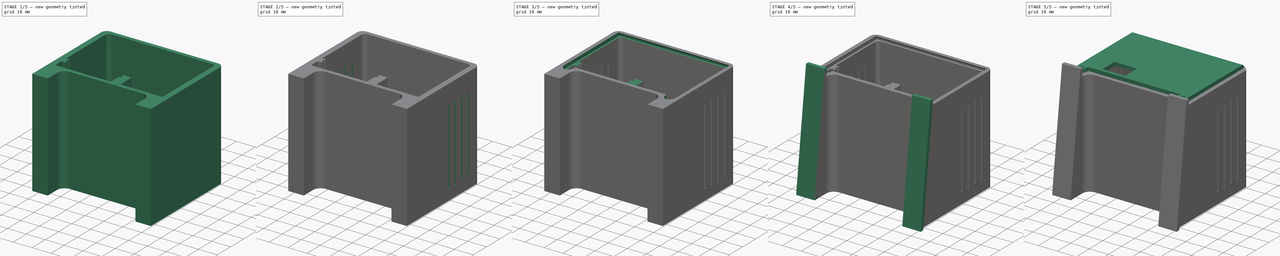
[diagram: build sequence overview — one tinted view per stage of 5, left to right]
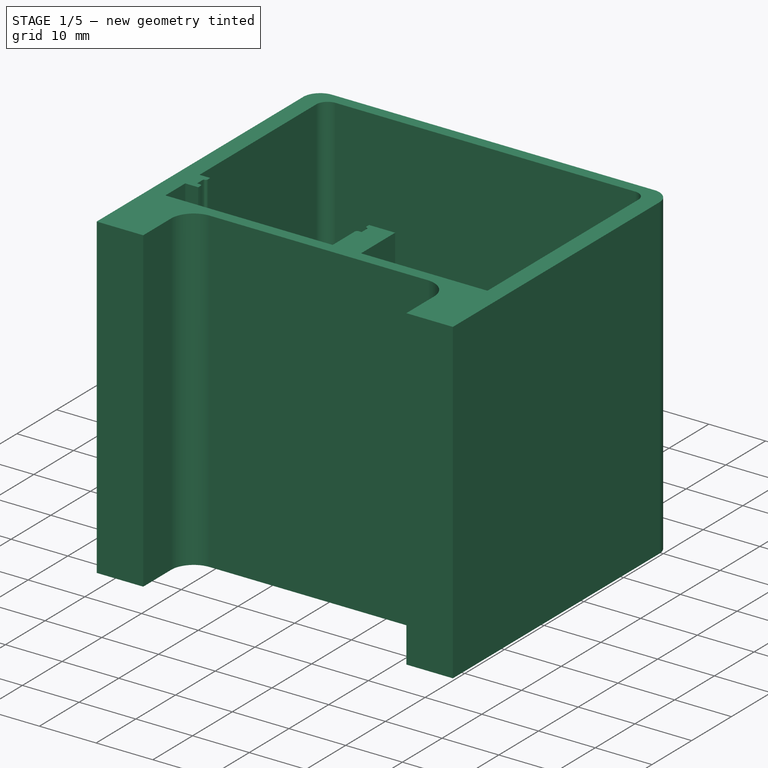
[diagram: stage 1 of 5 — iso view after this stage's code; geometry added in this stage tinted green]
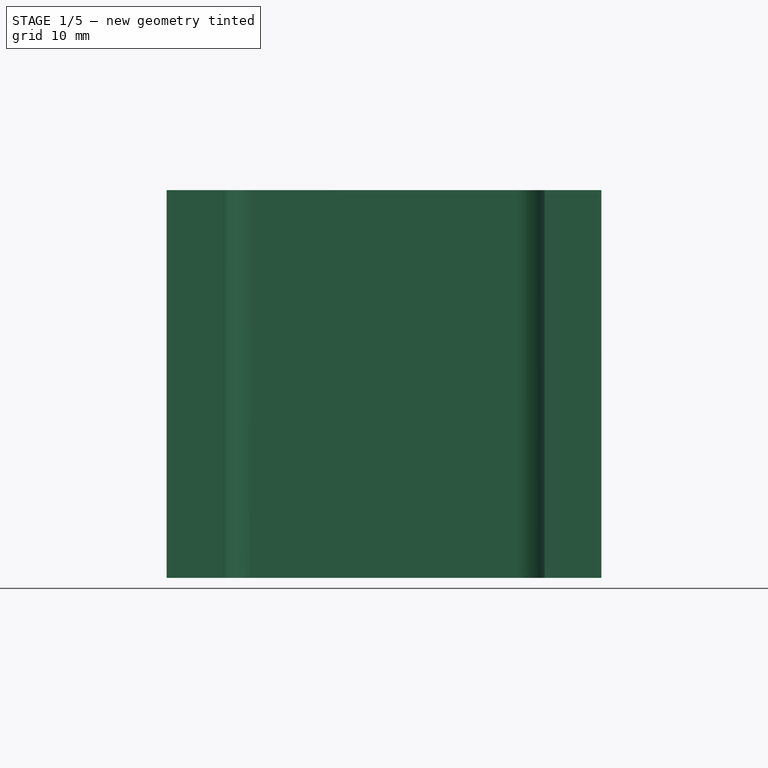
[diagram: stage 1 of 5 — front view after this stage's code; geometry added in this stage tinted green]
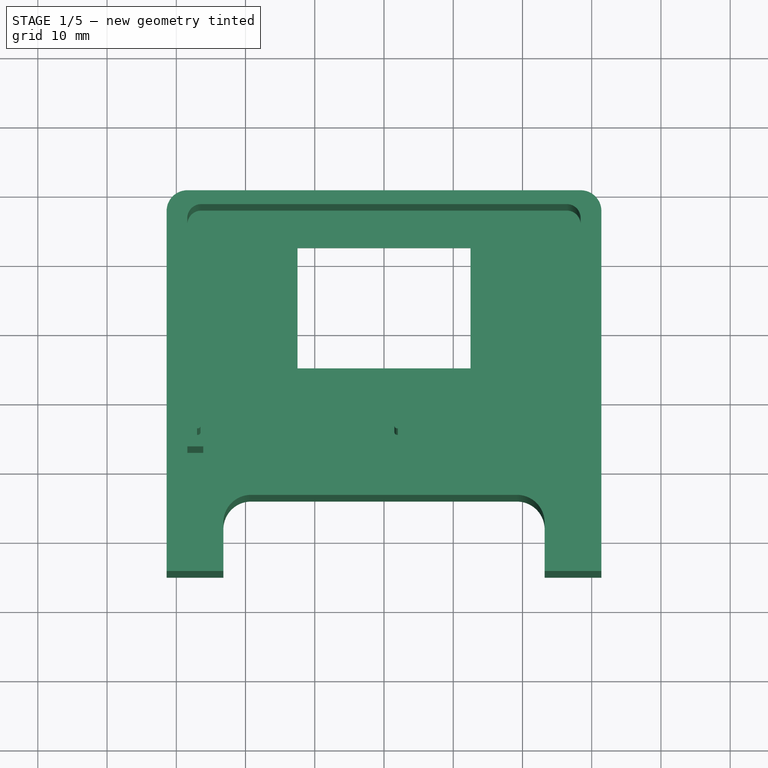
[diagram: stage 1 of 5 — top view after this stage's code; geometry added in this stage tinted green]
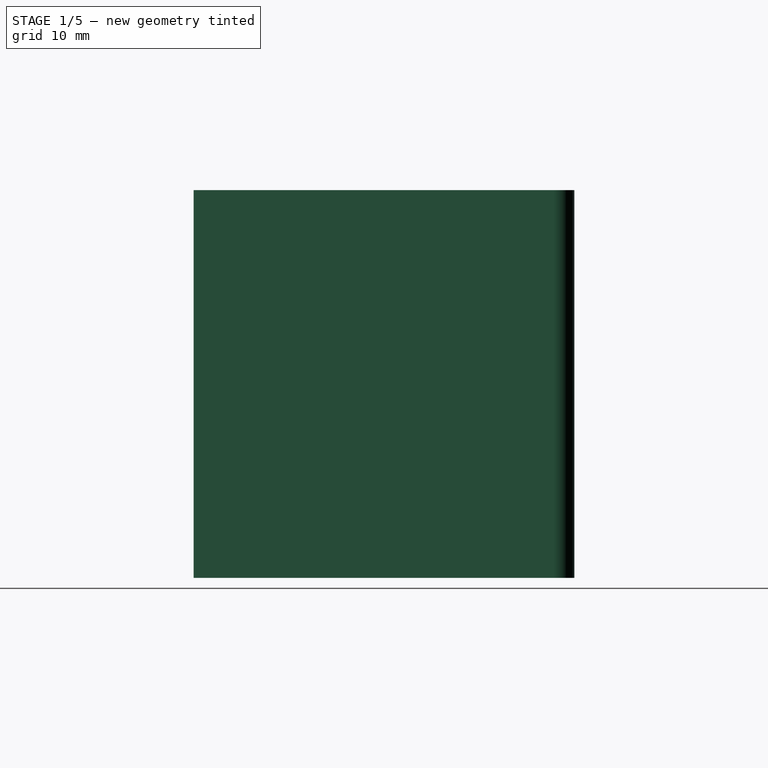
[diagram: stage 1 of 5 — right view after this stage's code; geometry added in this stage tinted green]
FCSTD DOCUMENT  (FreeCAD 0.19R24291 (Git))
Label: esp32-station-v0.26-wide
License: All rights reserved
LicenseURL: http://en.wikipedia.org/wiki/All_rights_reserved
objects: Sketcher::SketchObject×17, PartDesign::Pocket×9, PartDesign::Pad×8, PartDesign::Body×4, PartDesign::Chamfer×3, PartDesign::Plane×3, PartDesign::Mirrored×2, Spreadsheet::Sheet×1, PartDesign::Boolean×1, PartDesign::LinearPattern×1, App::Part×1
note: 68 computed .brp shape members not serialized (recipe doc carries the construction recipe); baked Part::Feature solids carry a one-line shape summary decoded from their .brp

FEATURE [PartDesign::Body] Body002  label="lid-cut"
  Group = -> [Sketch007,Pad003,Chamfer001]
  Origin = -> Origin003
  Tip = -> Chamfer001
FEATURE [Sketcher::SketchObject] Sketch008  label="sketch_screw_holes"
  AttachmentOffset = pos=(0,0,54.2) rot=(0,0,1;0rad)
  FullyConstrained = true
  MapMode = 5
  Placement = pos=(0,0,54.2) rot=(0,0,1;0rad)
  Support = -> [XY_Plane001]
  expr: .AttachmentOffset.Base.z = Spreadsheet.main_depth - Spreadsheet.lid_thickness
  expr: Constraints[2] = Spreadsheet.inner_width / 2 - Spreadsheet.lid_notch_diameter / 2 + Spreadsheet.lid_overhang
  expr: Constraints[1] = Spreadsheet.inner_height + Spreadsheet.lid_notch_length
  expr: Constraints[0] = Spreadsheet.screw_diameter
  sketch-geometry (2):
    g0: Circle CenterX=-26.9 CenterY=-43.8 CenterZ=0 NormalX=0 NormalY=0 NormalZ=1 AngleXU=0 Radius=1.1
    g1: Circle CenterX=26.9 CenterY=-43.8 CenterZ=0 NormalX=0 NormalY=0 NormalZ=1 AngleXU=0 Radius=1.1
  constraints (5):
    c: Diameter(g0) = 2.2
    c: DistanceY(g0,g-1) = 43.8
    c: DistanceX(g0,g-1) = 26.9
    c: Equal(g0,g1)
    c: Symmetric(g0,g1,g-2)
FEATURE [Sketcher::SketchObject] Sketch010  label="sketch_feet"
  FullyConstrained = true
  MapMode = 5
  Support = -> [XY_Plane001]
  expr: Constraints[11] = Spreadsheet.main_width / 2 - Spreadsheet.main_leg_width
  expr: Constraints[10] = Spreadsheet.main_height
  expr: Constraints[9] = Spreadsheet.leg_foot_height
  expr: Constraints[8] = Spreadsheet.leg_foot_width
  sketch-geometry (4):
    g0: LineSegment StartX=23.2 StartY=-55 StartZ=0 EndX=33 EndY=-55 EndZ=0
    g1: LineSegment StartX=33 StartY=-55 StartZ=0 EndX=33 EndY=-56.8 EndZ=0
    g2: LineSegment StartX=33 StartY=-56.8 StartZ=0 EndX=23.2 EndY=-56.8 EndZ=0
    g3: LineSegment StartX=23.2 StartY=-56.8 StartZ=0 EndX=23.2 EndY=-55 EndZ=0
  constraints (12):
    c: Coincident(g0,g1)
    c: Coincident(g1,g2)
    c: Coincident(g2,g3)
    c: Coincident(g3,g0)
    c: Horizontal(g0)
    c: Horizontal(g2)
    c: Vertical(g1)
    c: Vertical(g3)
    c: DistanceX(g2,g2) = 9.8
    c: DistanceY(g3,g3) = 1.8
    c: DistanceY(g0,g-1) = 55
    c: DistanceX(g-1,g0) = 23.2
FEATURE [Sketcher::SketchObject] Sketch011  label="sketch_front"
  FullyConstrained = true
  MapMode = 5
  Support = -> [XY_Plane001]
  expr: Constraints[13] = Spreadsheet.main_leg_radius
  expr: Constraints[24] = Spreadsheet.main_top_radius
  expr: Constraints[16] = Spreadsheet.main_height
  expr: Constraints[14] = Spreadsheet.main_leg_height
  expr: Constraints[9] = Spreadsheet.main_leg_width
  expr: Constraints[30] = Spreadsheet.main_leg_radius
  expr: Constraints[29] = Spreadsheet.main_top_radius
  expr: Constraints[32] = Spreadsheet.main_width
  sketch-geometry (13):
    g0: LineSegment StartX=-31.4 StartY=-55 StartZ=0 EndX=-31.4 EndY=-3 EndZ=0
    g1: LineSegment StartX=31.4 StartY=-55 StartZ=0 EndX=23.2 EndY=-55 EndZ=0
    g2: LineSegment StartX=23.2 StartY=-55 StartZ=0 EndX=23.2 EndY=-48 EndZ=0
    g3: LineSegment StartX=19.2 StartY=-44 StartZ=0 EndX=-19.2 EndY=-44 EndZ=0
    g4: LineSegment StartX=-23.2 StartY=-48 StartZ=0 EndX=-23.2 EndY=-55 EndZ=0
    g5: LineSegment StartX=-23.2 StartY=-55 StartZ=0 EndX=-31.4 EndY=-55 EndZ=0
    g6: ArcOfCircle CenterX=-19.2 CenterY=-48 CenterZ=0 NormalX=0 NormalY=0 NormalZ=1 AngleXU=0 Radius=4 StartAngle=1.5708 EndAngle=3.14159
    g7: ArcOfCircle CenterX=19.2 CenterY=-48 CenterZ=0 NormalX=0 NormalY=0 NormalZ=1 AngleXU=0 Radius=4 StartAngle=0 EndAngle=1.5708
    g8: LineSegment StartX=-28.4 StartY=-3.33e-14 StartZ=0 EndX=28.4 EndY=-5.46e-14 EndZ=0
    g9: LineSegment StartX=-23.2 StartY=-55 StartZ=0 EndX=23.2 EndY=-55 EndZ=0
    g10: ArcOfCircle CenterX=-28.4 CenterY=-3 CenterZ=0 NormalX=0 NormalY=0 NormalZ=1 AngleXU=0 Radius=3 StartAngle=1.5708 EndAngle=3.14159
    g11: LineSegment StartX=31.4 StartY=-55 StartZ=0 EndX=31.4 EndY=-3 EndZ=0
    g12: ArcOfCircle CenterX=28.4 CenterY=-3 CenterZ=0 NormalX=0 NormalY=0 NormalZ=1 AngleXU=0 Radius=3 StartAngle=-4.4e-15 EndAngle=1.5708
  constraints (33):
    c: Horizontal(g1)
    c: Coincident(g1,g2)
    c: Vertical(g2)
    c: Horizontal(g3)
    c: Vertical(g4)
    c: Coincident(g4,g5)
    c: Coincident(g5,g0)
    c: Horizontal(g5)
    c: Equal(g5,g1)
    c: DistanceX(g5,g5) = 8.2
    c: Tangent(g3,g6) = -1.5708
    c: Tangent(g4,g6) = -1.5708
    c: Vertical(g0)
    c: Radius(g6) = 4
    c: DistanceY(g4,g3) = 11
    c: Symmetric(g8,g8,g-2)
    c: DistanceY(g0,g8) = 55
    c: Tangent(g7,g3) = -1.5708
    c: Tangent(g7,g2) = -1.5708
    c: Coincident(g9,g4)
    c: Coincident(g9,g1)
    c: Horizontal(g9)
    c: Tangent(g10,g0) = 1.5708
    c: Tangent(g8,g10) = 1.5708
    c: Radius(g10) = 3
    c: Coincident(g11,g1)
    c: Vertical(g11)
    c: Tangent(g12,g8) = 1.5708
    c: Tangent(g12,g11) = -1.5708
    c: Radius(g12) = 3
    c: Radius(g7) = 4
    c: PointOnObject(g-1,g8)
    c: DistanceX(g0,g11) = 62.8
FEATURE [PartDesign::Pad] Pad005  label="pad_front"
  Direction = (1,1,1)
  Length = 2.2
  Length2 = 100
  Profile = -> Sketch011
  Type = 0
  expr: Length = Spreadsheet.front_thickness
FEATURE [PartDesign::Pad] Pad  label="pad_main"
  BaseFeature = -> Pad005
  Direction = (1,1,1)
  Length = 53.8
  Length2 = 100
  Profile = -> Sketch
  Type = 0
  expr: Length = Spreadsheet.main_depth - Spreadsheet.front_thickness
FEATURE [PartDesign::Pocket] Pocket001  label="pocket_screen"
  BaseFeature = -> Pad
  Length = 2.2
  Length2 = 100
  Profile = -> Sketch003
  Reversed = true
  Type = 0
  expr: Length = Spreadsheet.front_thickness
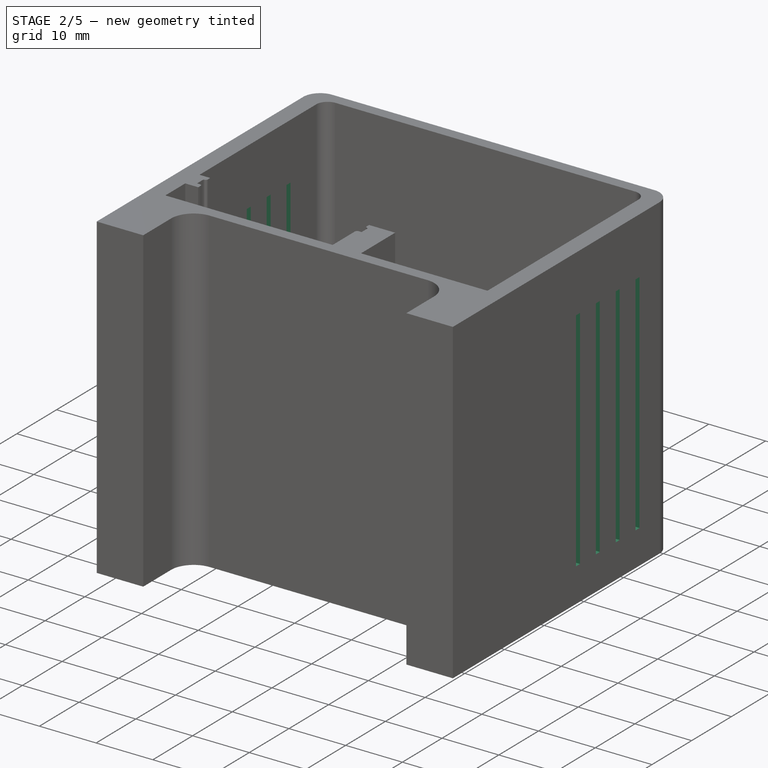
[diagram: stage 2 of 5 — iso view after this stage's code; geometry added in this stage tinted green]
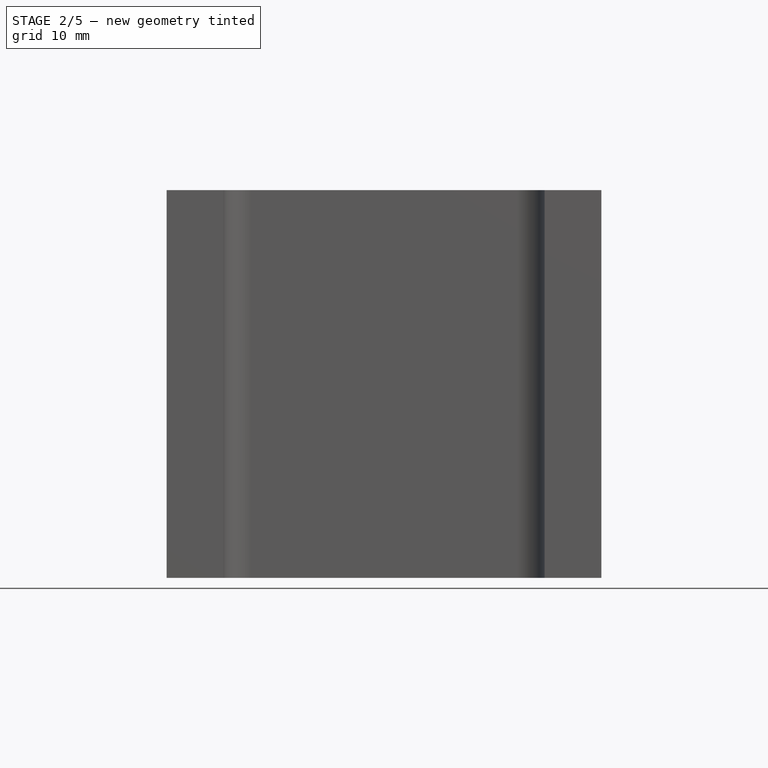
[diagram: stage 2 of 5 — front view after this stage's code; geometry added in this stage tinted green]
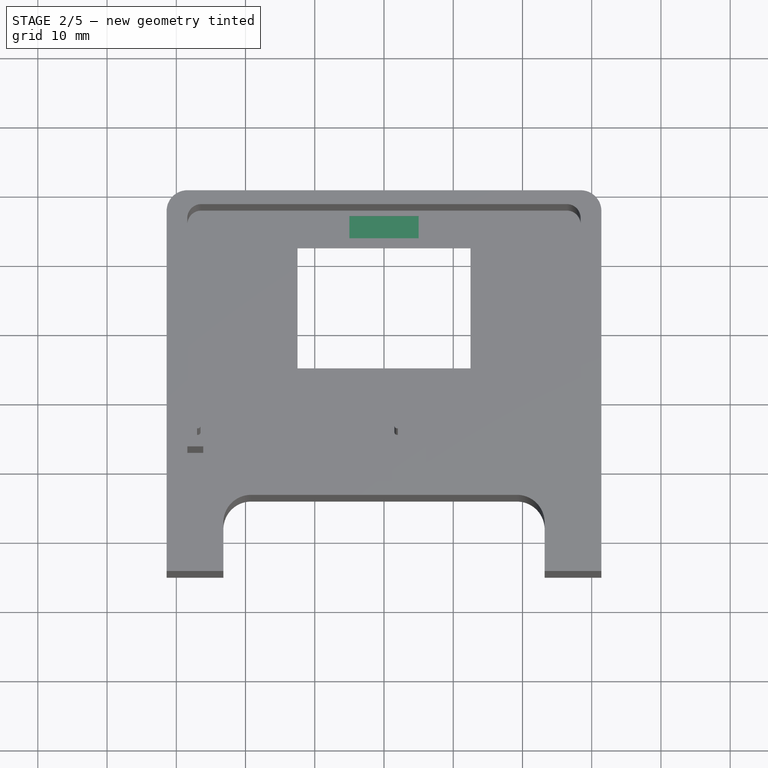
[diagram: stage 2 of 5 — top view after this stage's code; geometry added in this stage tinted green]
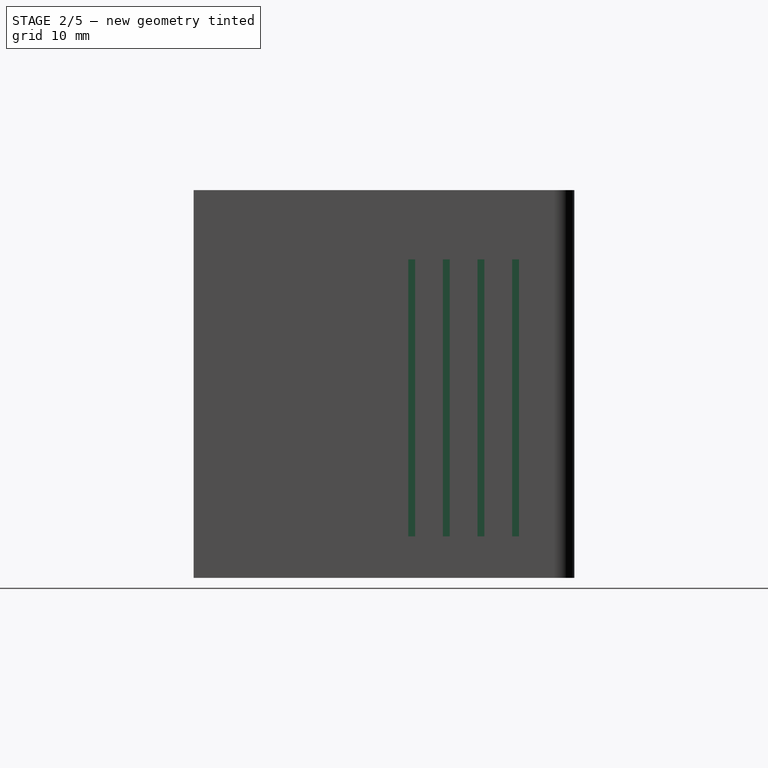
[diagram: stage 2 of 5 — right view after this stage's code; geometry added in this stage tinted green]
FEATURE [PartDesign::Pocket] Pocket003  label="pocket_solder_indent"
  BaseFeature = -> Pocket001
  Length = 0.8
  Length2 = 100
  Profile = -> Sketch005
  Type = 0
  expr: Length = Spreadsheet.screen_solder_depth
FEATURE [PartDesign::Pocket] Pocket002  label="pocket_loovers"
  BaseFeature = -> Pocket003
  Length = 40
  Length2 = 100
  Profile = -> Sketch004
  Reversed = true
  Type = 0
  expr: Length = Spreadsheet.loover_length
FEATURE [PartDesign::Mirrored] Mirrored  label="mirror_loovers"
  BaseFeature = -> Pocket002
  MirrorPlane = -> YZ_Plane001
  Originals = -> [Pocket002]
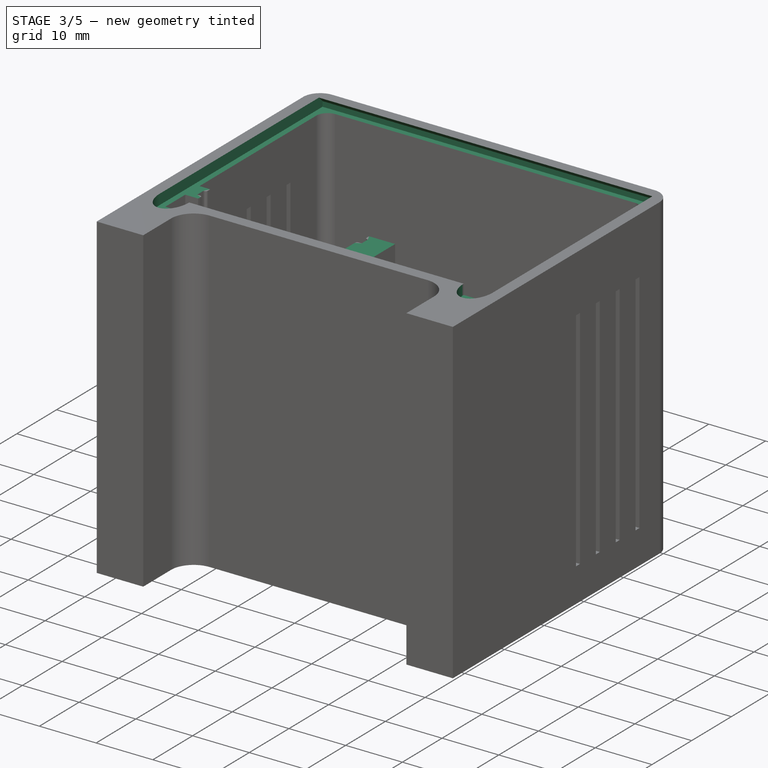
[diagram: stage 3 of 5 — iso view after this stage's code; geometry added in this stage tinted green]
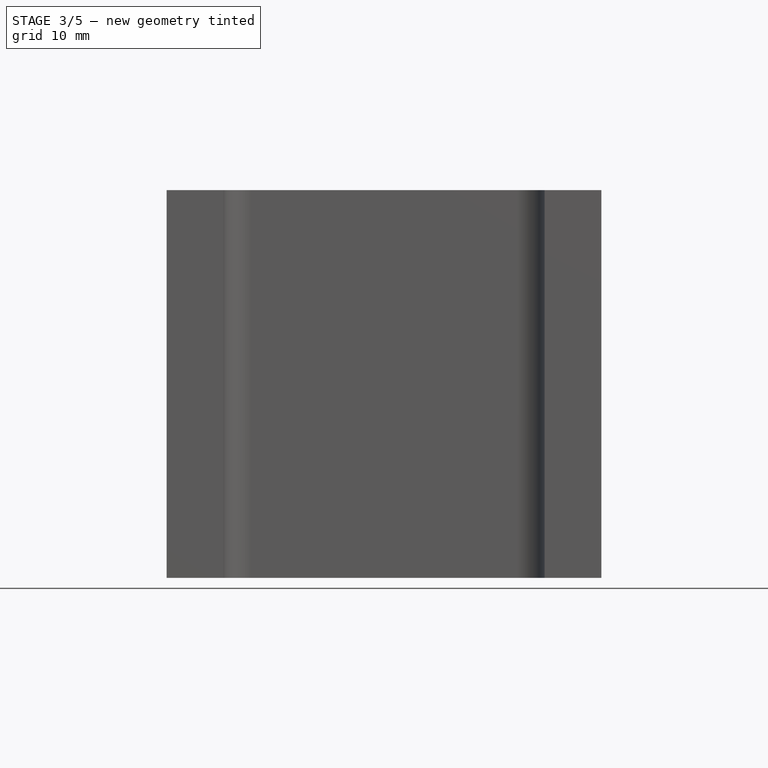
[diagram: stage 3 of 5 — front view after this stage's code; geometry added in this stage tinted green]
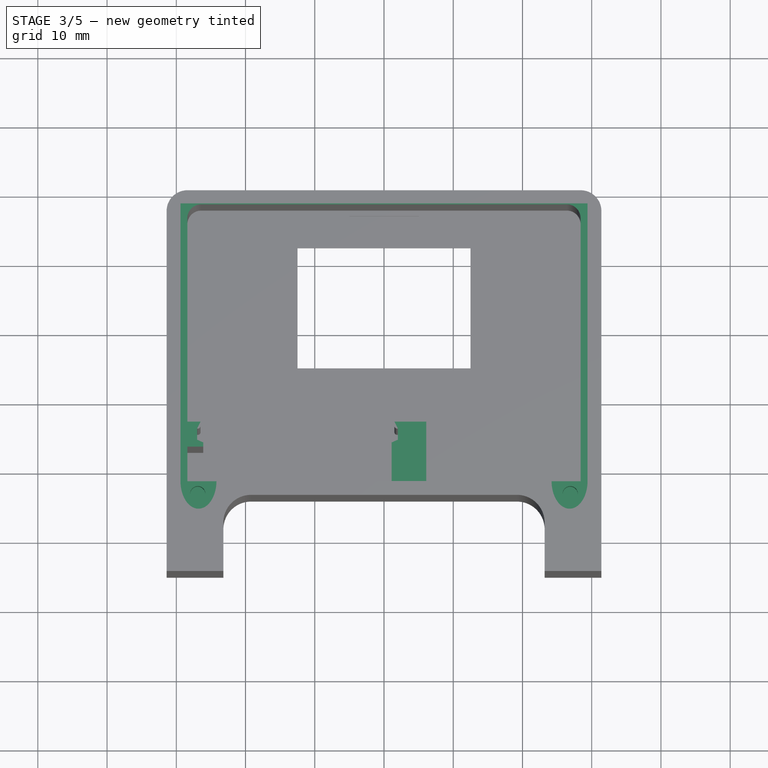
[diagram: stage 3 of 5 — top view after this stage's code; geometry added in this stage tinted green]
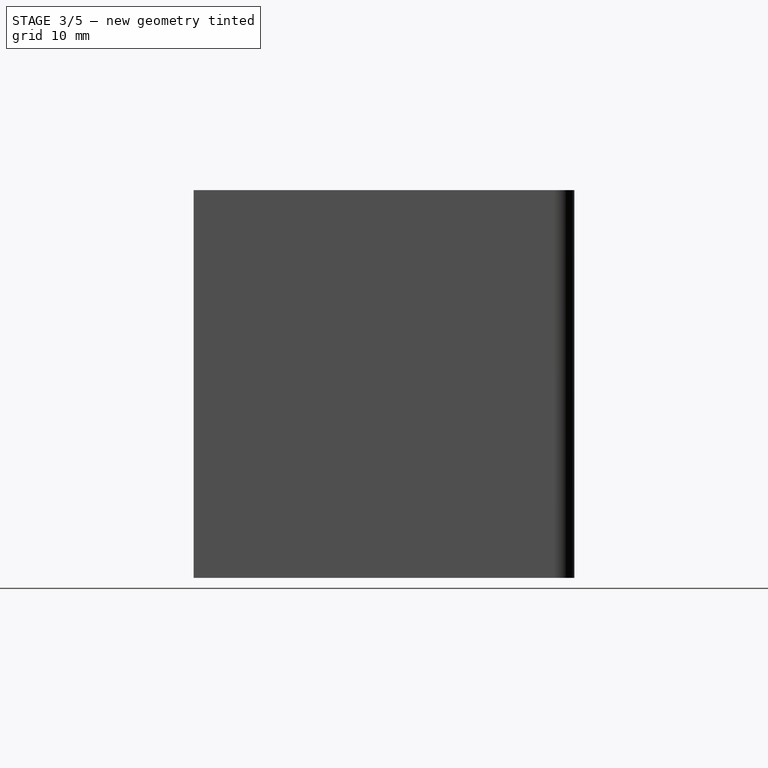
[diagram: stage 3 of 5 — right view after this stage's code; geometry added in this stage tinted green]
FEATURE [PartDesign::Body] Body001  label="body-lid-std"
  Group = -> [Sketch006,Pad002,Chamfer]
  Origin = -> Origin002
  Tip = -> Chamfer
FEATURE [Sketcher::SketchObject] Sketch007  label="sketch_lid_cut"
  AttachmentOffset = pos=(0,0,54.2) rot=(0,0,1;0rad)
  FullyConstrained = true
  MapMode = 5
  Placement = pos=(0,0,54.2) rot=(0,0,1;0rad)
  Support = -> [XY_Plane003]
  expr: Constraints[29] = Spreadsheet.lid_notch_diameter + Spreadsheet.lid_side_clearance
  expr: Constraints[2] = Spreadsheet.inner_width + Spreadsheet.lid_overhang * 2
  expr: Constraints[10] = Spreadsheet.lid_notch_diameter + Spreadsheet.lid_side_clearance
  expr: .AttachmentOffset.Base.z = Spreadsheet.main_depth - Spreadsheet.lid_thickness
  expr: Constraints[12] = Spreadsheet.inner_height + Spreadsheet.lid_overhang * 2 - Spreadsheet.inner_top_thickness / 2
  expr: Constraints[11] = Spreadsheet.lid_notch_length + Spreadsheet.lid_side_clearance
  expr: Constraints[22] = Spreadsheet.lid_notch_length + Spreadsheet.lid_side_clearance
  expr: Constraints[31] = Spreadsheet.inner_top_thickness / 2
  sketch-geometry (14):
    g0: LineSegment StartX=-29.4 StartY=-1 StartZ=0 EndX=29.4 EndY=-1 EndZ=0
    g1: LineSegment StartX=-29.4 StartY=-42 StartZ=0 EndX=-29.4 EndY=-1 EndZ=0
    g2: ArcOfEllipse CenterX=-26.8 CenterY=-42 CenterZ=0 NormalX=0 NormalY=0 NormalZ=1 MajorRadius=4 MinorRadius=2.6 AngleXU=-1.5708 StartAngle=4.71239 EndAngle=7.85398
    g3: LineSegment StartX=-26.8 StartY=-46 StartZ=0 EndX=-26.8 EndY=-38 EndZ=0
    g4: LineSegment StartX=-24.2 StartY=-42 StartZ=0 EndX=-29.4 EndY=-42 EndZ=0
    g5: GeomPoint X=-26.8 Y=-45.0397 Z=0
    g6: GeomPoint X=-26.8 Y=-38.9603 Z=0
    g7: LineSegment StartX=-24.2 StartY=-42 StartZ=0 EndX=24.2 EndY=-42 EndZ=0
    g8: ArcOfEllipse CenterX=26.8 CenterY=-42 CenterZ=0 NormalX=0 NormalY=0 NormalZ=1 MajorRadius=4 MinorRadius=2.6 AngleXU=-1.5708 StartAngle=4.71239 EndAngle=7.85398
    g9: LineSegment StartX=26.8 StartY=-46 StartZ=0 EndX=26.8 EndY=-38 EndZ=0
    g10: LineSegment StartX=29.4 StartY=-42 StartZ=0 EndX=24.2 EndY=-42 EndZ=0
    g11: GeomPoint X=26.8 Y=-38.9603 Z=0
    g12: GeomPoint X=26.8 Y=-45.0397 Z=0
    g13: LineSegment StartX=29.4 StartY=-1 StartZ=0 EndX=29.4 EndY=-42 EndZ=0
  constraints (29):
    c: Coincident(g1,g0)
    c: Vertical(g1)
    c: DistanceX(g0,g0) = 58.8
    c: Symmetric(g0,g0,g-2)
    c: InternalAlignment(g3-g6 -> g2) x4
    c: Vertical(g3)
    c: Coincident(g2,g4)
    c: DistanceX(g1,g2) = 5.2
    c: DistanceY(g3,g2) = 4
    c: DistanceY(g2,g0) = 41
    c: Coincident(g7,g2)
    c: Horizontal(g7)
    c: InternalAlignment(g9,g8)
    c: InternalAlignment(g10,g8)
    c: InternalAlignment(g12,g8)
    c: InternalAlignment(g11,g8)
    c: Vertical(g9)
    c: Coincident(g8,g10)
    c: PointOnObject(g8,g10)
    c: DistanceY(g9,g8) = 4
    c: Coincident(g8,g7)
    c: Coincident(g2,g1)
    c: Coincident(g13,g0)
    c: Coincident(g13,g8)
    c: Vertical(g13)
    c: Equal(g1,g13)
    c: DistanceX(g7,g8) = 5.2
    c: DistanceY(g1,g2) = 0
    c: DistanceY(g0,g-1) = 1
FEATURE [PartDesign::Pad] Pad003  label="pad_lid_cut"
  Direction = (1,1,1)
  Length = 1.8
  Length2 = 100
  Profile = -> Sketch007
  Type = 0
  expr: Length = Spreadsheet.lid_thickness
FEATURE [PartDesign::Chamfer] Chamfer001
  Angle = 45
  Base = -> Pad003 [Edge4]
  BaseFeature = -> Pad003
  ChamferType = 2
  FlipDirection = false
  Size = 0.9
  Size2 = 1
  SupportTransform = false
  expr: Size = Spreadsheet.lid_thickness / 2
FEATURE [PartDesign::Boolean] Boolean  label="boolean_lid-cut"
  BaseFeature = -> Mirrored
  Group = -> [Body002]
  Type = 1
FEATURE [PartDesign::Pocket] Pocket004  label="pocket_screw_holes"
  BaseFeature = -> Boolean
  Length = 6
  Length2 = 100
  Profile = -> Sketch008
  Type = 0
  expr: Length = Spreadsheet.screw_depth
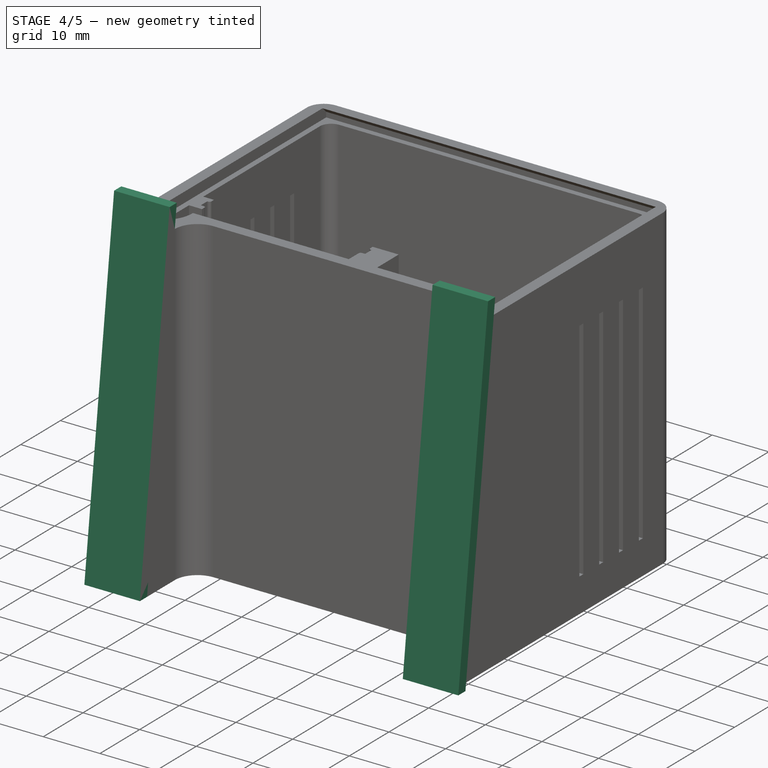
[diagram: stage 4 of 5 — iso view after this stage's code; geometry added in this stage tinted green]
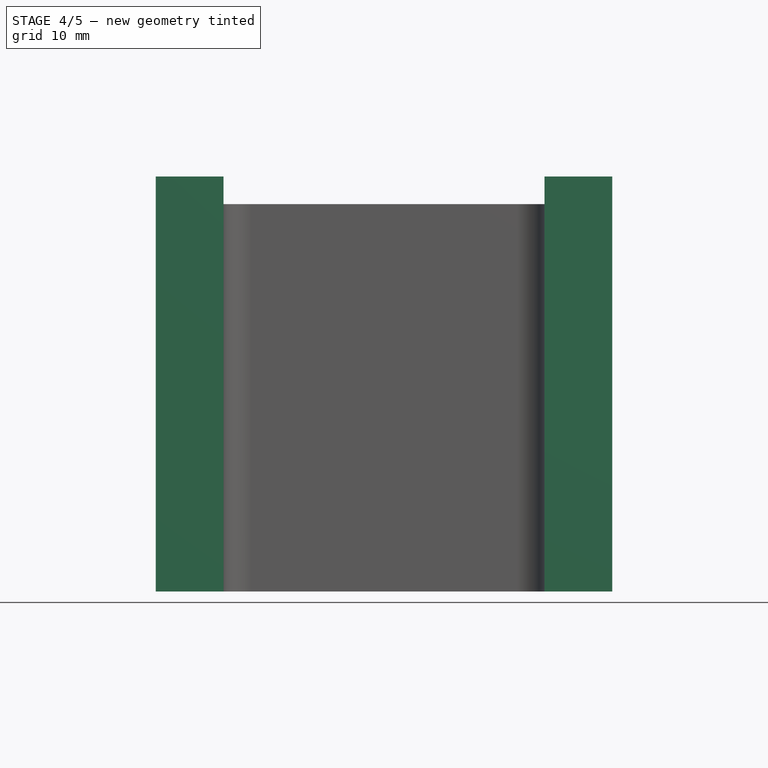
[diagram: stage 4 of 5 — front view after this stage's code; geometry added in this stage tinted green]
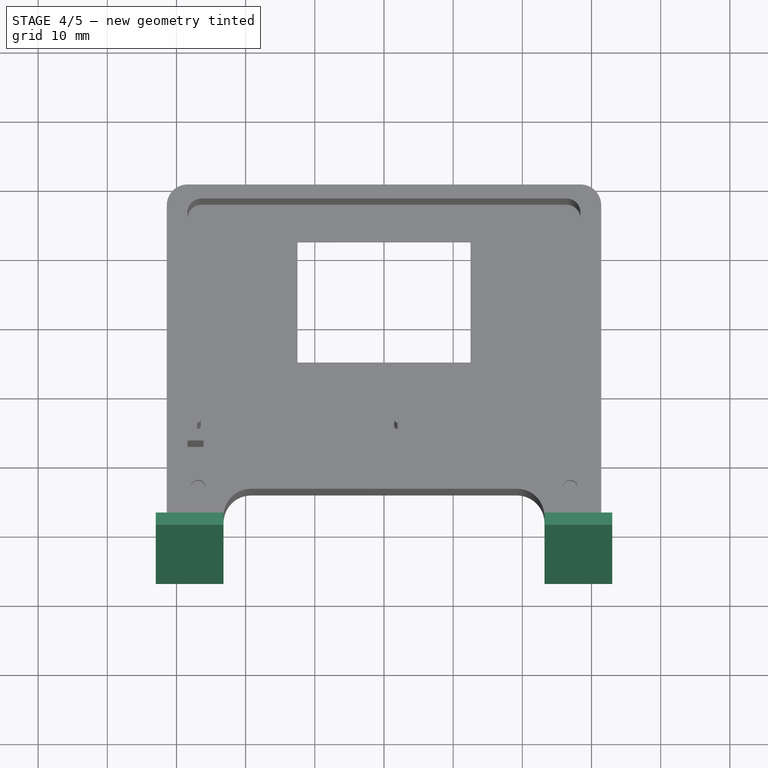
[diagram: stage 4 of 5 — top view after this stage's code; geometry added in this stage tinted green]
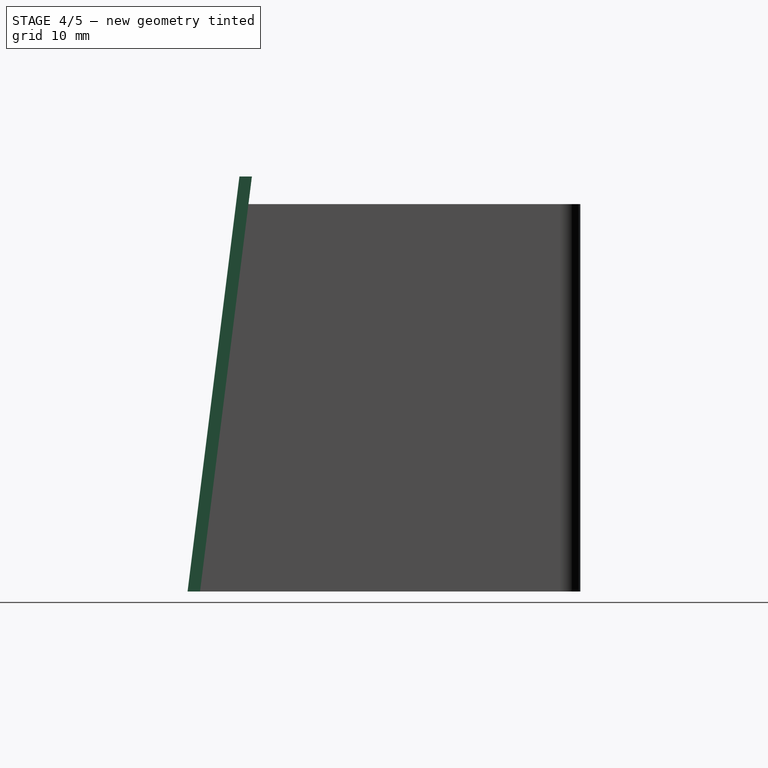
[diagram: stage 4 of 5 — right view after this stage's code; geometry added in this stage tinted green]
FEATURE [Sketcher::SketchObject] Sketch009  label="sketch_angle_bottom"
  FullyConstrained = true
  MapMode = 5
  Placement = pos=(31.4,0,0) rot=(0.57735,0.57735,0.57735;2.0944rad)
  Support = -> [Pocket004]
  expr: Constraints[7] = Spreadsheet.main_depth
  expr: Constraints[6] = Spreadsheet.main_height
  sketch-geometry (3):
    g0: LineSegment StartX=-55 StartY=56 StartZ=0 EndX=-48 EndY=56 EndZ=0
    g1: LineSegment StartX=-48 StartY=56 StartZ=0 EndX=-55 EndY=0 EndZ=0
    g2: LineSegment StartX=-55 StartY=0 StartZ=0 EndX=-55 EndY=56 EndZ=0
  constraints (9):
    c: Horizontal(g0)
    c: Coincident(g0,g1)
    c: Coincident(g1,g2)
    c: Coincident(g2,g0)
    c: Vertical(g2)
    c: Distance(g0) = 7
    c: DistanceX(g1,g-1) = 55
    c: Distance(g2) = 56
    c: PointOnObject(g1,g-1)
FEATURE [PartDesign::Pocket] Pocket005  label="pocket_angle_bottom"
  BaseFeature = -> Pocket004
  Length = 5
  Length2 = 100
  Profile = -> Sketch009
  Type = 1
FEATURE [PartDesign::Pad] Pad004  label="pad_feet"
  BaseFeature = -> Pocket005
  Direction = (0,1,8)
  Length = 60
  Length2 = 100
  Profile = -> Sketch010
  Type = 0
  UseCustomVector = true
  expr: Length = Spreadsheet.main_depth + Spreadsheet.leg_foot_extend
FEATURE [PartDesign::Mirrored] Mirrored002  label="mirror_feet"
  BaseFeature = -> Pad004
  MirrorPlane = -> Sketch010 [V_Axis]
  Originals = -> [Pad004]
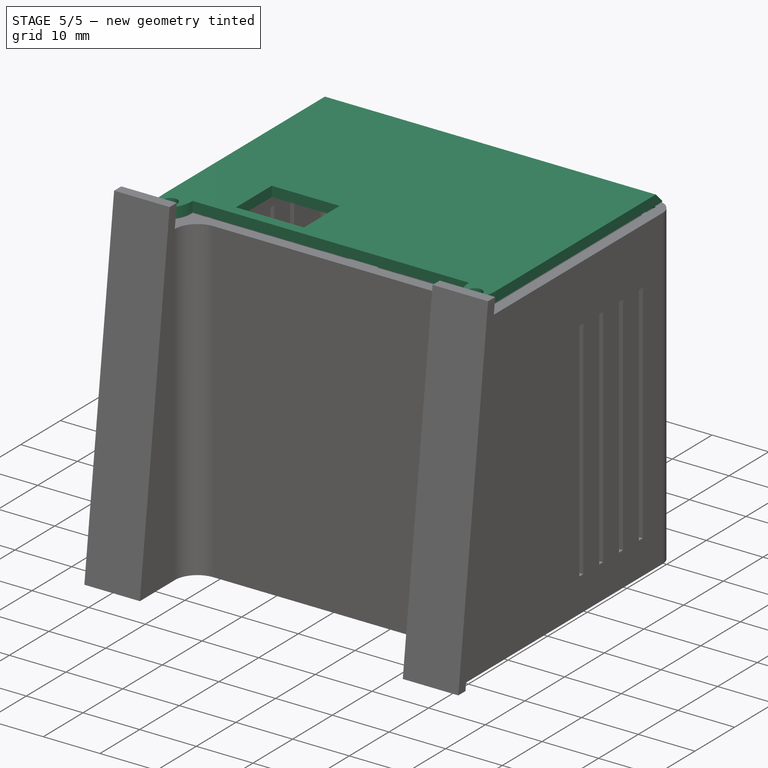
[diagram: stage 5 of 5 — iso view after this stage's code; geometry added in this stage tinted green]
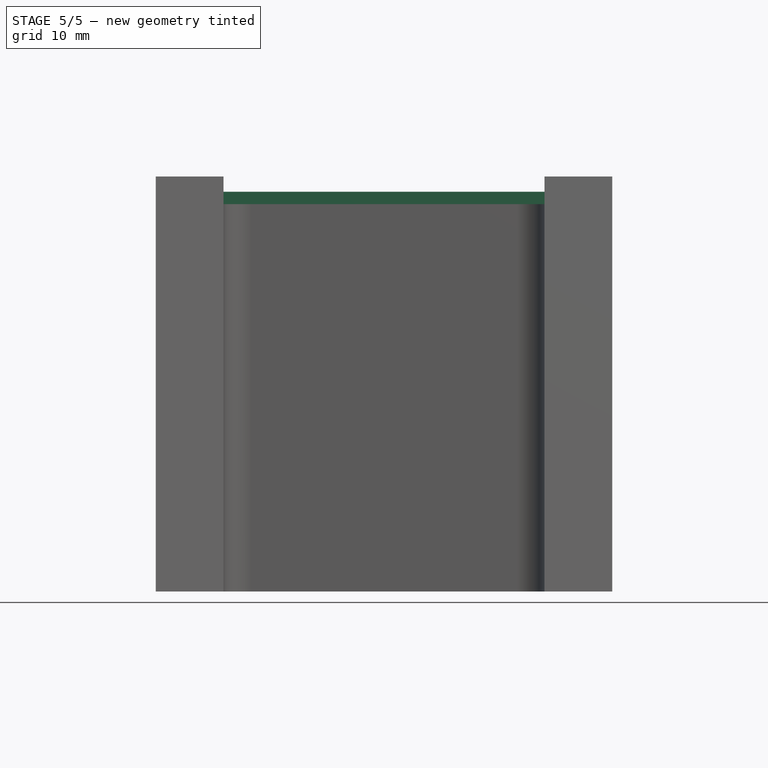
[diagram: stage 5 of 5 — front view after this stage's code; geometry added in this stage tinted green]
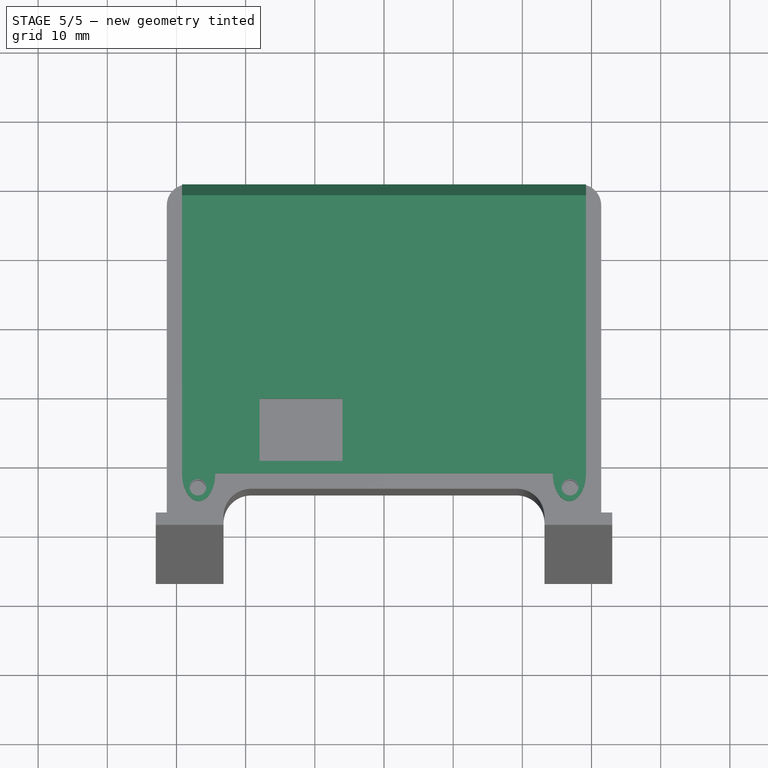
[diagram: stage 5 of 5 — top view after this stage's code; geometry added in this stage tinted green]
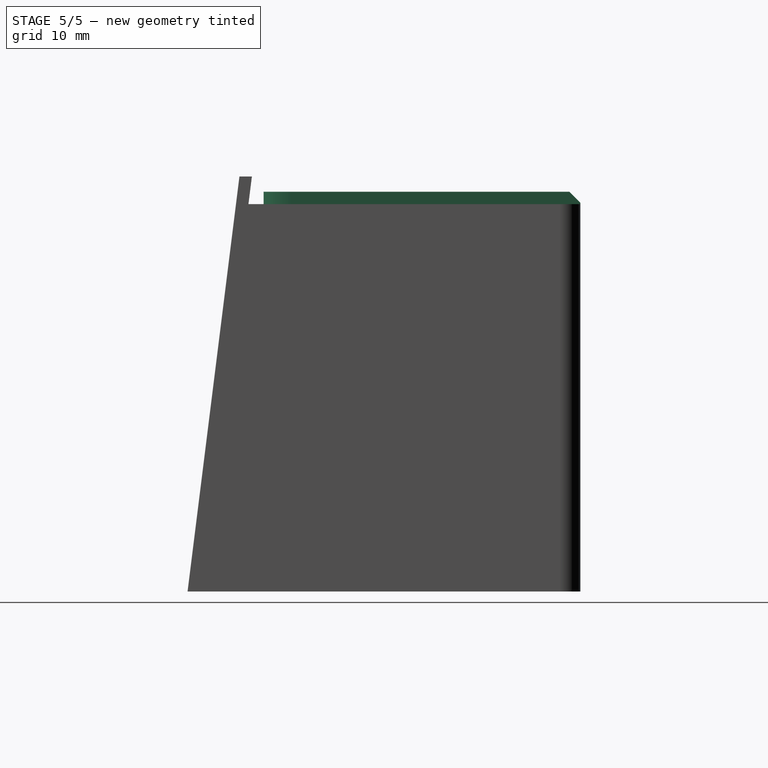
[diagram: stage 5 of 5 — right view after this stage's code; geometry added in this stage tinted green]
FEATURE [Sketcher::SketchObject] Sketch  label="sketch_main"
  AttachmentOffset = pos=(0,0,2.2) rot=(0,0,1;0rad)
  FullyConstrained = true
  MapMode = 5
  Placement = pos=(0,0,2.2) rot=(0,0,1;0rad)
  Support = -> [XY_Plane001]
  expr: Constraints[13] = Spreadsheet.main_leg_radius
  expr: .AttachmentOffset.Base.z = Spreadsheet.front_thickness
  expr: Constraints[77] = Spreadsheet.board_chamfer_radius
  expr: Constraints[57] = Spreadsheet.board_rise
  expr: Constraints[92] = Spreadsheet.main_leg_radius
  expr: Constraints[91] = Spreadsheet.main_top_radius
  expr: Constraints[51] = Spreadsheet.board_thickness
  expr: Constraints[66] = Spreadsheet.board_width
  expr: Constraints[14] = Spreadsheet.main_leg_height
  expr: Constraints[55] = Spreadsheet.board_chamfer_radius
  expr: Constraints[16] = Spreadsheet.inner_wall_thickness
  expr: Constraints[48] = Spreadsheet.board_pad_wall
  expr: Constraints[52] = 1
  expr: Constraints[56] = Spreadsheet.board_chamfer_radius
  expr: Constraints[47] = Spreadsheet.board_pad_wall
  expr: Constraints[61] = Spreadsheet.board_pad_wall
  expr: Constraints[19] = Spreadsheet.inner_top_thickness
  expr: Constraints[109] = Spreadsheet.main_width
  expr: Constraints[63] = Spreadsheet.board_pad_bottom
  expr: Constraints[49] = Spreadsheet.inner_bottom_thickness
  expr: Constraints[58] = Spreadsheet.board_rise
  expr: Constraints[50] = 1
  expr: Constraints[64] = Spreadsheet.board_pad_top
  expr: Constraints[62] = Spreadsheet.board_thickness
  expr: Constraints[108] = Spreadsheet.inner_wall_thickness
  expr: Constraints[65] = Spreadsheet.main_height
  expr: Constraints[107] = Spreadsheet.inner_top_radius
  expr: Constraints[79] = Spreadsheet.board_chamfer_radius
  expr: Constraints[54] = Spreadsheet.board_pad_bottom
  expr: Constraints[53] = Spreadsheet.board_pad_top
  expr: Constraints[86] = Spreadsheet.main_top_radius
  expr: Constraints[17] = Spreadsheet.inner_top_radius
  expr: Constraints[9] = Spreadsheet.main_leg_width
  sketch-geometry (42):
    g0: LineSegment StartX=-31.4 StartY=-55 StartZ=0 EndX=-31.4 EndY=-3 EndZ=0
    g1: LineSegment StartX=31.4 StartY=-55 StartZ=0 EndX=23.2 EndY=-55 EndZ=0
    g2: LineSegment StartX=23.2 StartY=-55 StartZ=0 EndX=23.2 EndY=-48 EndZ=0
    g3: LineSegment StartX=19.2 StartY=-44 StartZ=0 EndX=-19.2 EndY=-44 EndZ=0
    g4: LineSegment StartX=-23.2 StartY=-48 StartZ=0 EndX=-23.2 EndY=-55 EndZ=0
    g5: LineSegment StartX=-23.2 StartY=-55 StartZ=0 EndX=-31.4 EndY=-55 EndZ=0
    g6: ArcOfCircle CenterX=-19.2 CenterY=-48 CenterZ=0 NormalX=0 NormalY=0 NormalZ=1 AngleXU=0 Radius=4 StartAngle=1.5708 EndAngle=3.14159
    g7: ArcOfCircle CenterX=19.2 CenterY=-48 CenterZ=0 NormalX=0 NormalY=0 NormalZ=1 AngleXU=0 Radius=4 StartAngle=3e-16 EndAngle=1.5708
    g8: LineSegment StartX=-28.4 StartY=0 StartZ=0 EndX=28.4 EndY=0 EndZ=0
    g9: LineSegment StartX=1.1 StartY=-42 StartZ=0 EndX=-28.4 EndY=-42 EndZ=0
    g10: ArcOfCircle CenterX=-26.4 CenterY=-4 CenterZ=0 NormalX=0 NormalY=0 NormalZ=1 AngleXU=0 Radius=2 StartAngle=1.5708 EndAngle=3.14159
    g11: LineSegment StartX=-26.4 StartY=-2 StartZ=0 EndX=26.4 EndY=-2 EndZ=0
    g12: LineSegment StartX=-28.4 StartY=-42 StartZ=0 EndX=-28.4 EndY=-37 EndZ=0
    g13: LineSegment StartX=-28.4 StartY=-37 StartZ=0 EndX=-26.1 EndY=-37 EndZ=0
    g14: LineSegment StartX=-26.1 StartY=-37 StartZ=0 EndX=-26.1 EndY=-36.4 EndZ=0
    g15: LineSegment StartX=-26.5 StartY=-36 StartZ=0 EndX=-27 EndY=-36 EndZ=0
    g16: LineSegment StartX=-27 StartY=-36 StartZ=0 EndX=-27 EndY=-34.4 EndZ=0
    g17: LineSegment StartX=-27 StartY=-34.4 StartZ=0 EndX=-26.9 EndY=-34.4 EndZ=0
    g18: LineSegment StartX=-26.5 StartY=-34 StartZ=0 EndX=-26.5 EndY=-33.4 EndZ=0
    g19: LineSegment StartX=-26.5 StartY=-33.4 StartZ=0 EndX=-28.4 EndY=-33.4 EndZ=0
    g20: LineSegment StartX=-28.4 StartY=-33.4 StartZ=0 EndX=-28.4 EndY=-4 EndZ=0
    g21: LineSegment StartX=1.1 StartY=-42 StartZ=0 EndX=1.1 EndY=-37 EndZ=0
    g22: LineSegment StartX=1.1 StartY=-37 StartZ=0 EndX=1.1 EndY=-36.4 EndZ=0
    g23: LineSegment StartX=1.5 StartY=-36 StartZ=0 EndX=2 EndY=-36 EndZ=0
    g24: LineSegment StartX=2 StartY=-36 StartZ=0 EndX=2 EndY=-34.4 EndZ=0
    g25: LineSegment StartX=2 StartY=-34.4 StartZ=0 EndX=1.9 EndY=-34.4 EndZ=0
    g26: LineSegment StartX=1.5 StartY=-34 StartZ=0 EndX=1.5 EndY=-33.4 EndZ=0
    g27: LineSegment StartX=1.5 StartY=-33.4 StartZ=0 EndX=3.4 EndY=-33.4 EndZ=0
    g28: ArcOfCircle CenterX=-26.5 CenterY=-36.4 CenterZ=0 NormalX=0 NormalY=0 NormalZ=1 AngleXU=0 Radius=0.4 StartAngle=-8e-15 EndAngle=1.5708
    g29: ArcOfCircle CenterX=-26.9 CenterY=-34 CenterZ=0 NormalX=0 NormalY=0 NormalZ=1 AngleXU=0 Radius=0.4 StartAngle=4.71239 EndAngle=6.28319
    g30: ArcOfCircle CenterX=1.9 CenterY=-34 CenterZ=0 NormalX=0 NormalY=0 NormalZ=1 AngleXU=0 Radius=0.4 StartAngle=3.14159 EndAngle=4.71239
    g31: ArcOfCircle CenterX=1.5 CenterY=-36.4 CenterZ=0 NormalX=0 NormalY=0 NormalZ=1 AngleXU=0 Radius=0.4 StartAngle=1.5708 EndAngle=3.14159
    g32: LineSegment StartX=-23.2 StartY=-55 StartZ=0 EndX=23.2 EndY=-55 EndZ=0
    g33: ArcOfCircle CenterX=-28.4 CenterY=-3 CenterZ=0 NormalX=0 NormalY=0 NormalZ=1 AngleXU=0 Radius=3 StartAngle=1.5708 EndAngle=3.14159
    g34: LineSegment StartX=31.4 StartY=-55 StartZ=0 EndX=31.4 EndY=-3 EndZ=0
    g35: ArcOfCircle CenterX=28.4 CenterY=-3 CenterZ=0 NormalX=0 NormalY=0 NormalZ=1 AngleXU=0 Radius=3 StartAngle=0 EndAngle=1.5708
    g36: LineSegment StartX=3.4 StartY=-33.4 StartZ=0 EndX=6.1 EndY=-33.4 EndZ=0
    g37: LineSegment StartX=6.1 StartY=-33.4 StartZ=0 EndX=6.1 EndY=-42 EndZ=0
    g38: LineSegment StartX=6.1 StartY=-42 StartZ=0 EndX=28.4 EndY=-42 EndZ=0
    g39: LineSegment StartX=28.4 StartY=-42 StartZ=0 EndX=28.4 EndY=-4 EndZ=0
    g40: LineSegment StartX=1.1 StartY=-42 StartZ=0 EndX=6.1 EndY=-42 EndZ=0
    g41: ArcOfCircle CenterX=26.4 CenterY=-4 CenterZ=0 NormalX=0 NormalY=0 NormalZ=1 AngleXU=0 Radius=2 StartAngle=0 EndAngle=1.5708
  constraints (113):
    c: Horizontal(g1)
    c: Coincident(g1,g2)
    c: Vertical(g2)
    c: Horizontal(g3)
    c: Vertical(g4)
    c: Coincident(g4,g5)
    c: Coincident(g5,g0)
    c: Horizontal(g5)
    c: Equal(g5,g1)
    c: DistanceX(g5,g5) = 8.2
    c: Tangent(g3,g6) = -1.5708
    c: Tangent(g4,g6) = -1.5708
    c: Vertical(g0)
    c: Radius(g6) = 4
    c: DistanceY(g4,g3) = 11
    c: Horizontal(g9)
    c: DistanceX(g0,g10) = 3
    c: Radius(g10) = 2
    c: Horizontal(g11)
    c: DistanceY(g10,g8) = 2
    c: Coincident(g9,g12)
    c: Vertical(g12)
    c: Coincident(g12,g13)
    c: Horizontal(g13)
    c: Coincident(g13,g14)
    c: Vertical(g14)
    c: Horizontal(g15)
    c: Coincident(g15,g16)
    c: Vertical(g16)
    c: Coincident(g16,g17)
    c: Horizontal(g17)
    c: Vertical(g18)
    c: Coincident(g18,g19)
    c: Horizontal(g19)
    c: Coincident(g19,g20)
    c: Vertical(g20)
    c: Coincident(g9,g21)
    c: Vertical(g21)
    c: Vertical(g22)
    c: Horizontal(g23)
    c: Coincident(g23,g24)
    c: Vertical(g24)
    c: Coincident(g24,g25)
    c: Horizontal(g25)
    c: Vertical(g26)
    c: Coincident(g26,g27)
    c: Horizontal(g27)
    c: DistanceX(g19,g16) = 1.4
    c: DistanceX(g12,g15) = 1.4
    c: DistanceY(g3,g9) = 2
    c: DistanceY(g13,g15) = 1
    c: DistanceY(g15,g16) = 1.6
    c: DistanceY(g16,g18) = 1
    c: DistanceX(g16,g18) = 0.5
    c: DistanceX(g15,g13) = 0.9
    c: Radius(g28) = 0.4
    c: Radius(g29) = 0.4
    c: DistanceY(g9,g12) = 5
    c: DistanceY(g9,g21) = 5
    c: DistanceY(g22,g23) = 1
    c: DistanceY(g24,g26) = 1
    c: DistanceX(g24,g27) = 1.4
    c: DistanceY(g23,g24) = 1.6
    c: DistanceX(g22,g23) = 0.9
    c: DistanceX(g26,g24) = 0.5
    c: DistanceY(g0,g8) = 55
    c: DistanceX(g15,g23) = 29
    c: Tangent(g20,g10) = 1.5708
    c: Tangent(g11,g10) = 1.5708
    c: Tangent(g7,g3) = -1.5708
    c: Tangent(g7,g2) = -1.5708
    c: Tangent(g29,g18) = -1.5708
    c: Tangent(g29,g17) = -1.5708
    c: Tangent(g28,g15) = -1.5708
    c: Tangent(g28,g14) = -1.5708
    c: Tangent(g30,g26) = 1.5708
    c: Tangent(g30,g25) = 1.5708
    c: Radius(g30) = 0.4
    c: Tangent(g31,g23) = 1.5708
    c: Radius(g31) = 0.4
    c: Tangent(g22,g31) = 1.5708
    c: Coincident(g32,g4)
    c: Coincident(g32,g1)
    c: Horizontal(g32)
    c: Tangent(g33,g0) = 1.5708
    c: Tangent(g8,g33) = 1.5708
    c: Radius(g33) = 3
    c: Coincident(g34,g1)
    c: Vertical(g34)
    c: Tangent(g35,g8) = 1.5708
    c: Tangent(g35,g34) = -1.5708
    c: Radius(g35) = 3
    c: Radius(g7) = 4
    c: Coincident(g27,g36)
    c: Horizontal(g36)
    c: Coincident(g36,g37)
    c: Vertical(g37)
    c: Coincident(g37,g38)
    c: Horizontal(g38)
    c: Coincident(g38,g39)
    c: Vertical(g39)
    c: DistanceX(g9,g37) = 5
    c: Coincident(g40,g9)
    c: Coincident(g40,g37)
    c: Horizontal(g40)
    c: Tangent(g41,g39) = -1.5708
    c: Tangent(g41,g11) = 1.5708
    c: Radius(g41) = 2
    c: DistanceX(g39,g34) = 3
    c: DistanceX(g0,g34) = 62.8
    c: Symmetric(g8,g8,g-2)
    c: Tangent(g8,g-1) = -1.5708
    c: Coincident(g21,g22)
FEATURE [Spreadsheet::Sheet] Spreadsheet
  cells = A2=board_width; B2(board_width)=29; A3=board_thickness; B3(board_thickness)=1.6; A4=board_pad_wall; B4(board_pad_wall)=1.4; A5=board_pad_top; B5(board_pad_top)=0.5; A6=board_pad_bottom; B6(board_pad_bottom)=0.9; A7=board_rise; B7(board_rise)=5; A8=board_chamfer_radius; B8(board_chamfer_radius)=0.4; A10=main_width; B10(main_width)=62.8; A11=main_height; B11(main_height)==main_leg_height + 2 * inner_top_thickness + inner_height; C11=calculated; A12=main_top_radius; B12(main_top_radius)=3; A13=main_leg_width; B13(main_leg_width)=8.199999999999999; A14=main_leg_height; B14(main_leg_height)=11; A15=main_leg_radius; B15(main_leg_radius)=4; A16=main_depth; B16(main_depth)=56; A18=inner_wall_thickness; B18(inner_wall_thickness)=3; A19=inner_top_thickness; B19(inner_top_thickness)=2; A20=inner_bottom_thickness; B20(inner_bottom_thickness)=2; A21=inner_width; B21(inner_width)==main_width - 2 * inner_wall_thickness; C21=calculated; A22=inner_height; B22(inner_height)=40; A23=inner_top_radius; B23(inner_top_radius)=2; A25=screen_width; B25(screen_width)=25; A26=screen_height; B26(screen_height)=17.4; A27=screen_top_offset; B27(screen_top_offset)=7.4; A29=screen_solder_offset; B29(screen_solder_offset)=1.4; A30=screen_solder_height; B30(screen_solder_height)=3.2; A31=screen_solder_width; B31(screen_solder_width)=10; A32=screen_solder_depth; B32(screen_solder_depth)=0.8; A33=part_depth; B33(part_depth)=56; A34=front_thickness; B34(front_thickness)=2.2; A36=loover_top_offset; B36(loover_top_offset)=8; A37=loover_height; B37(loover_height)=4; A38=loover_front_offset; B38(loover_front_offset)=6; A39=loover_length; B39(loover_length)=40; A40=loover_spacing; B40(loover_spacing)=1; A42=lid_side_clearance; B42(lid_side_clearance)=0.2; A43=lid_thickness; B43(lid_thickness)=1.8; A44=lid_notch_diameter; B44(lid_notch_diameter)=5; A45=lid_notch_length; B45(lid_notch_length)=3.8; A46=screw_diameter; B46(screw_diameter)=2.2; A47=screw_depth; B47(screw_depth)=6; A48=lid_screw_diameter; B48(lid_screw_diameter)==screw_diameter + 0.2; C48=calculated; A49=lid_overhang; B49(lid_overhang)=1; A50=lid_port_width; B50(lid_port_width)=12; A51=lid_port_usb_height; B51(lid_port_usb_height)=7; A52=lid_port_usb_offset_left; B52(lid_port_offset_left)==inner_wall_thickness + board_width / 2 + board_pad_wall - lid_port_width / 2; A53=lid_port_aux_offset_top; B53(lid_port_aux_offset_top)=20; A54=lid_port_aux_height; B54(lid_port_aux_height)=3; A56=leg_foot_width; B56(leg_foot_width)==main_leg_width + 1.6; C56=calculated; A57=leg_foot_height; B57(leg_foot_height)=1.8; A58=leg_foot_extend; B58(leg_foot_extend)=4
FEATURE [Sketcher::SketchObject] Sketch003  label="sketch_screen"
  FullyConstrained = true
  MapMode = 5
  Support = -> [XY_Plane001]
  expr: Constraints[10] = Spreadsheet.screen_top_offset
  expr: Constraints[8] = Spreadsheet.screen_height
  expr: Constraints[7] = Spreadsheet.screen_width
  sketch-geometry (4):
    g0: LineSegment StartX=-12.5 StartY=-7.4 StartZ=0 EndX=12.5 EndY=-7.4 EndZ=0
    g1: LineSegment StartX=12.5 StartY=-7.4 StartZ=0 EndX=12.5 EndY=-24.8 EndZ=0
    g2: LineSegment StartX=12.5 StartY=-24.8 StartZ=0 EndX=-12.5 EndY=-24.8 EndZ=0
    g3: LineSegment StartX=-12.5 StartY=-24.8 StartZ=0 EndX=-12.5 EndY=-7.4 EndZ=0
  constraints (11):
    c: Coincident(g0,g1)
    c: Coincident(g1,g2)
    c: Coincident(g2,g3)
    c: Coincident(g3,g0)
    c: Horizontal(g2)
    c: Vertical(g1)
    c: Vertical(g3)
    c: DistanceX(g2,g2) = 25
    c: DistanceY(g3,g3) = 17.4
    c: Symmetric(g0,g0,g-2)
    c: DistanceY(g0,g-1) = 7.4
FEATURE [Sketcher::SketchObject] Sketch004  label="sketch_loovers"
  AttachmentOffset = pos=(0,0,6) rot=(0,0,1;0rad)
  FullyConstrained = true
  MapMode = 5
  Placement = pos=(0,0,6) rot=(0,0,1;0rad)
  Support = -> [XY_Plane001]
  expr: Constraints[118] = Spreadsheet.loover_height
  expr: Constraints[92] = Spreadsheet.loover_height
  expr: Constraints[20] = (Spreadsheet.loover_height * 2 + Spreadsheet.loover_spacing * 3 - Spreadsheet.loover_height - Spreadsheet.loover_spacing * 2) / 2
  expr: Constraints[31] = Spreadsheet.loover_height
  expr: Constraints[21] = Spreadsheet.loover_height
  expr: Constraints[94] = Spreadsheet.loover_height
  expr: Constraints[24] = Spreadsheet.loover_top_offset
  expr: Constraints[93] = Spreadsheet.loover_height
  expr: Constraints[75] = Spreadsheet.main_width / 2
  expr: .AttachmentOffset.Base.z = Spreadsheet.loover_front_offset
  sketch-geometry (44):
    g0: LineSegment StartX=-31.4 StartY=-8 StartZ=0 EndX=-29.4 EndY=-8 EndZ=0
    g1: LineSegment StartX=-30.4 StartY=-9 StartZ=0 EndX=-31.4 EndY=-9 EndZ=0
    g2: LineSegment StartX=-31.4 StartY=-9 StartZ=0 EndX=-31.4 EndY=-8 EndZ=0
    g3: LineSegment StartX=-30.4 StartY=-13 StartZ=0 EndX=-31.4 EndY=-13 EndZ=0
    g4: LineSegment StartX=-31.4 StartY=-13 StartZ=0 EndX=-31.4 EndY=-14 EndZ=0
    g5: LineSegment StartX=-31.4 StartY=-14 StartZ=0 EndX=-30.4 EndY=-14 EndZ=0
    g6: LineSegment StartX=-29.4 StartY=-10.5 StartZ=0 EndX=-28.4 EndY=-10.5 EndZ=0
    g7: LineSegment StartX=-28.4 StartY=-10.5 StartZ=0 EndX=-28.4 EndY=-11.5 EndZ=0
    g8: LineSegment StartX=-28.4 StartY=-11.5 StartZ=0 EndX=-29.4 EndY=-11.5 EndZ=0
    g9: LineSegment StartX=-29.4 StartY=-16.5 StartZ=0 EndX=-28.4 EndY=-16.5 EndZ=0
    g10: LineSegment StartX=-28.4 StartY=-16.5 StartZ=0 EndX=-28.4 EndY=-15.5 EndZ=0
    g11: LineSegment StartX=-28.4 StartY=-15.5 StartZ=0 EndX=-29.4 EndY=-15.5 EndZ=0
    g12: LineSegment StartX=-30.4 StartY=-18 StartZ=0 EndX=-31.4 EndY=-18 EndZ=0
    g13: LineSegment StartX=-31.4 StartY=-18 StartZ=0 EndX=-31.4 EndY=-19 EndZ=0
    g14: LineSegment StartX=-30.4 StartY=-9 StartZ=0 EndX=-30.4 EndY=-13 EndZ=0
    g15: LineSegment StartX=-30.4 StartY=-14 StartZ=0 EndX=-30.4 EndY=-18 EndZ=0
    g16: LineSegment StartX=-31.4 StartY=-19 StartZ=0 EndX=-30.4 EndY=-19 EndZ=0
    g17: LineSegment StartX=-30.4 StartY=-19 StartZ=0 EndX=-30.4 EndY=-23 EndZ=0
    g18: LineSegment StartX=-30.4 StartY=-23 StartZ=0 EndX=-31.4 EndY=-23 EndZ=0
    g19: LineSegment StartX=-31.4 StartY=-23 StartZ=0 EndX=-31.4 EndY=-24 EndZ=0
    g20: LineSegment StartX=-31.4 StartY=-24 StartZ=0 EndX=-30.4 EndY=-24 EndZ=0
    g21: LineSegment StartX=-29.4 StartY=-25.5 StartZ=0 EndX=-29.4 EndY=-21.5 EndZ=0
    g22: LineSegment StartX=-29.4 StartY=-21.5 StartZ=0 EndX=-28.4 EndY=-21.5 EndZ=0
    g23: LineSegment StartX=-28.4 StartY=-21.5 StartZ=0 EndX=-28.4 EndY=-20.5 EndZ=0
    g24: LineSegment StartX=-28.4 StartY=-20.5 StartZ=0 EndX=-29.4 EndY=-20.5 EndZ=0
    g25: LineSegment StartX=-29.4 StartY=-20.5 StartZ=0 EndX=-29.4 EndY=-16.5 EndZ=0
    g26: LineSegment StartX=-30.4 StartY=-13 StartZ=0 EndX=-30.4 EndY=-14 EndZ=0
    g27: LineSegment StartX=-30.4 StartY=-18 StartZ=0 EndX=-30.4 EndY=-19 EndZ=0
    g28: LineSegment StartX=-29.4 StartY=-8 StartZ=0 EndX=-29.4 EndY=-10.5 EndZ=0
    g29: LineSegment StartX=-29.4 StartY=-11.5 StartZ=0 EndX=-29.4 EndY=-15.5 EndZ=0
    g30: LineSegment StartX=-29.4 StartY=-10.5 StartZ=0 EndX=-29.4 EndY=-11.5 EndZ=0
    g31: LineSegment StartX=-29.4 StartY=-15.5 StartZ=0 EndX=-29.4 EndY=-16.5 EndZ=0
    g32: LineSegment StartX=-29.4 StartY=-20.5 StartZ=0 EndX=-29.4 EndY=-21.5 EndZ=0
    g33: LineSegment StartX=-31.4 StartY=-9 StartZ=0 EndX=-31.4 EndY=-13 EndZ=0
    g34: LineSegment StartX=-31.4 StartY=-14 StartZ=0 EndX=-31.4 EndY=-18 EndZ=0
    g35: LineSegment StartX=-31.4 StartY=-19 StartZ=0 EndX=-31.4 EndY=-23 EndZ=0
    g36: LineSegment StartX=-28.4 StartY=-11.5 StartZ=0 EndX=-28.4 EndY=-15.5 EndZ=0
    g37: LineSegment StartX=-28.4 StartY=-16.5 StartZ=0 EndX=-28.4 EndY=-20.5 EndZ=0
    g38: LineSegment StartX=-29.4 StartY=-25.5 StartZ=0 EndX=-28.4 EndY=-25.5 EndZ=0
    g39: LineSegment StartX=-28.4 StartY=-25.5 StartZ=0 EndX=-28.4 EndY=-26.5 EndZ=0
    g40: LineSegment StartX=-28.4 StartY=-26.5 StartZ=0 EndX=-30.4 EndY=-26.5 EndZ=0
    g41: LineSegment StartX=-30.4 StartY=-26.5 StartZ=0 EndX=-30.4 EndY=-24 EndZ=0
    g42: LineSegment StartX=-28.4 StartY=-21.5 StartZ=0 EndX=-28.4 EndY=-25.5 EndZ=0
    g43: LineSegment StartX=-30.4 StartY=-23 StartZ=0 EndX=-30.4 EndY=-24 EndZ=0
  constraints (120):
    c: Horizontal(g0)
    c: Coincident(g1,g2)
    c: Horizontal(g1)
    c: Vertical(g2)
    c: Coincident(g3,g4)
    c: Coincident(g4,g5)
    c: Horizontal(g3)
    c: Horizontal(g5)
    c: Vertical(g4)
    c: Coincident(g6,g7)
    c: Coincident(g7,g8)
    c: Horizontal(g6)
    c: Horizontal(g8)
    c: Vertical(g7)
    c: Coincident(g9,g10)
    c: Coincident(g10,g11)
    c: Horizontal(g9)
    c: Horizontal(g11)
    c: Vertical(g10)
    c: DistanceY(g4,g4) = 1
    c: DistanceY(g6,g0) = 2.5
    c: DistanceY(g3,g1) = 4
    c: Coincident(g12,g13)
    c: Vertical(g13)
    c: DistanceY(g2,g-1) = 8
    c: Coincident(g14,g1)
    c: Coincident(g14,g3)
    c: Vertical(g14)
    c: Coincident(g0,g2)
    c: Coincident(g15,g12)
    c: Vertical(g15)
    c: DistanceY(g12,g4) = 4
    c: Coincident(g13,g16)
    c: Horizontal(g16)
    c: Coincident(g16,g17)
    c: Vertical(g17)
    c: Coincident(g17,g18)
    c: Horizontal(g18)
    c: Coincident(g18,g19)
    c: Vertical(g19)
    c: Coincident(g19,g20)
    c: Horizontal(g20)
    c: Vertical(g21)
    c: Coincident(g21,g22)
    c: Horizontal(g22)
    c: Coincident(g22,g23)
    c: Vertical(g23)
    c: Coincident(g23,g24)
    c: Horizontal(g24)
    c: Coincident(g24,g25)
    c: Vertical(g25)
    c: Coincident(g15,g5)
    c: Distance(g1,g1) = 1
    c: Coincident(g26,g3)
    c: Coincident(g26,g5)
    c: Vertical(g26)
    c: Coincident(g27,g12)
    c: Coincident(g27,g16)
    c: Vertical(g27)
    c: Coincident(g28,g0)
    c: Coincident(g28,g6)
    c: Vertical(g28)
    c: Coincident(g29,g8)
    c: Coincident(g29,g11)
    c: Coincident(g9,g25)
    c: Vertical(g29)
    c: Coincident(g30,g6)
    c: Coincident(g30,g8)
    c: Vertical(g30)
    c: Coincident(g31,g11)
    c: Coincident(g31,g9)
    c: Coincident(g32,g24)
    c: Coincident(g32,g21)
    c: Vertical(g31)
    c: Vertical(g32)
    c: DistanceX(g0,g-1) = 31.4
    c: Coincident(g33,g1)
    c: Coincident(g33,g3)
    c: Coincident(g34,g4)
    c: Coincident(g34,g12)
    c: Vertical(g34)
    c: Coincident(g35,g13)
    c: Coincident(g35,g18)
    c: Vertical(g35)
    c: DistanceX(g1,g0) = 1
    c: Coincident(g36,g7)
    c: Coincident(g36,g10)
    c: Coincident(g37,g9)
    c: Coincident(g37,g23)
    c: Vertical(g37)
    c: Distance(g19) = 1
    c: Distance(g13) = 1
    c: DistanceY(g18,g13) = 4
    c: DistanceY(g10,g7) = 4
    c: DistanceY(g23,g9) = 4
    c: Distance(g6) = 1
    c: DistanceY(g7,g6) = 1
    c: DistanceY(g9,g10) = 1
    c: DistanceY(g22,g23) = 1
    c: Vertical(g36)
    c: Horizontal(g12)
    c: DistanceY(g2,g2) = 1
    c: Vertical(g33)
    c: Coincident(g21,g38)
    c: Horizontal(g38)
    c: Coincident(g38,g39)
    c: Vertical(g39)
    c: Coincident(g39,g40)
    c: Horizontal(g40)
    c: Coincident(g40,g41)
    c: Coincident(g41,g20)
    c: Vertical(g41)
    c: Coincident(g42,g22)
    c: Coincident(g42,g38)
    c: Vertical(g42)
    c: Coincident(g43,g17)
    c: Coincident(g43,g20)
    c: Vertical(g43)
    c: DistanceY(g38,g22) = 4
    c: DistanceY(g39,g38) = 1
FEATURE [Sketcher::SketchObject] Sketch005  label="sketch_solder_indent"
  AttachmentOffset = pos=(0,0,2.2) rot=(0,0,1;0rad)
  ExternalGeometry = -> [Sketch003]
  FullyConstrained = true
  MapMode = 5
  Placement = pos=(0,0,2.2) rot=(0,0,1;0rad)
  Support = -> [XY_Plane001]
  expr: Constraints[10] = Spreadsheet.screen_solder_offset
  expr: Constraints[9] = Spreadsheet.screen_solder_height
  expr: Constraints[8] = Spreadsheet.screen_solder_width
  expr: .AttachmentOffset.Base.z = Spreadsheet.front_thickness
  sketch-geometry (4):
    g0: LineSegment StartX=-5 StartY=-2.8 StartZ=0 EndX=5 EndY=-2.8 EndZ=0
    g1: LineSegment StartX=5 StartY=-2.8 StartZ=0 EndX=5 EndY=-6 EndZ=0
    g2: LineSegment StartX=5 StartY=-6 StartZ=0 EndX=-5 EndY=-6 EndZ=0
    g3: LineSegment StartX=-5 StartY=-6 StartZ=0 EndX=-5 EndY=-2.8 EndZ=0
  constraints (11):
    c: Coincident(g0,g1)
    c: Coincident(g1,g2)
    c: Coincident(g2,g3)
    c: Coincident(g3,g0)
    c: Horizontal(g2)
    c: Vertical(g1)
    c: Vertical(g3)
    c: Symmetric(g0,g0,g-2)
    c: DistanceX(g0,g0) = 10
    c: DistanceY(g3,g3) = 3.2
    c: DistanceY(g-3,g1) = 1.4
FEATURE [Sketcher::SketchObject] Sketch006  label="sketch_lid_std"
  AttachmentOffset = pos=(0,0,56) rot=(0,0,1;0rad)
  FullyConstrained = true
  MapMode = 5
  Placement = pos=(0,0,56) rot=(0,0,1;0rad)
  Support = -> [XY_Plane002]
  expr: Constraints[37] = 9
  expr: Constraints[25] = Spreadsheet.lid_screw_diameter
  expr: Constraints[24] = Spreadsheet.lid_notch_diameter - Spreadsheet.lid_side_clearance
  expr: Constraints[26] = Spreadsheet.inner_width / 2 - Spreadsheet.lid_notch_diameter / 2 + Spreadsheet.lid_overhang
  expr: Constraints[17] = Spreadsheet.lid_notch_length + Spreadsheet.lid_side_clearance
  expr: Constraints[9] = Spreadsheet.inner_height + 2 * Spreadsheet.lid_overhang - Spreadsheet.lid_side_clearance
  expr: Constraints[27] = Spreadsheet.inner_height + Spreadsheet.lid_notch_length
  expr: Constraints[7] = Spreadsheet.lid_notch_diameter - Spreadsheet.lid_side_clearance
  expr: .AttachmentOffset.Base.z = Spreadsheet.main_depth
  expr: Constraints[8] = Spreadsheet.lid_notch_length + Spreadsheet.lid_side_clearance
  expr: Constraints[2] = Spreadsheet.inner_width + 2 * Spreadsheet.lid_overhang - 2 * Spreadsheet.lid_side_clearance
  sketch-geometry (18):
    g0: LineSegment StartX=-29.2 StartY=0 StartZ=0 EndX=29.2 EndY=0 EndZ=0
    g1: LineSegment StartX=-29.2 StartY=-41.8 StartZ=0 EndX=-29.2 EndY=0 EndZ=0
    g2: ArcOfEllipse CenterX=-26.8 CenterY=-41.8 CenterZ=0 NormalX=0 NormalY=0 NormalZ=1 MajorRadius=4 MinorRadius=2.4 AngleXU=-1.5708 StartAngle=4.71239 EndAngle=7.85398
    g3: LineSegment StartX=-26.8 StartY=-45.8 StartZ=0 EndX=-26.8 EndY=-37.8 EndZ=0
    g4: LineSegment StartX=-24.4 StartY=-41.8 StartZ=0 EndX=-29.2 EndY=-41.8 EndZ=0
    g5: GeomPoint X=-26.8 Y=-38.6 Z=0
    g6: LineSegment StartX=-24.4 StartY=-41.8 StartZ=0 EndX=24.4 EndY=-41.8 EndZ=0
    g7: ArcOfEllipse CenterX=26.8 CenterY=-41.8 CenterZ=0 NormalX=0 NormalY=0 NormalZ=1 MajorRadius=4 MinorRadius=2.4 AngleXU=-1.5708 StartAngle=4.71239 EndAngle=7.85398
    g8: LineSegment StartX=26.8 StartY=-45.8 StartZ=0 EndX=26.8 EndY=-37.8 EndZ=0
    g9: LineSegment StartX=29.2 StartY=-41.8 StartZ=0 EndX=24.4 EndY=-41.8 EndZ=0
    g10: GeomPoint X=26.8 Y=-38.6 Z=0
    g11: LineSegment StartX=29.2 StartY=0 StartZ=0 EndX=29.2 EndY=-41.8 EndZ=0
    g12: Circle CenterX=-26.9 CenterY=-43.8 CenterZ=0 NormalX=0 NormalY=0 NormalZ=1 AngleXU=0 Radius=1.2
    g13: Circle CenterX=26.9 CenterY=-43.8 CenterZ=0 NormalX=0 NormalY=0 NormalZ=1 AngleXU=0 Radius=1.2
    g14: LineSegment StartX=-18 StartY=-31 StartZ=0 EndX=-6 EndY=-31 EndZ=0
    g15: LineSegment StartX=-6 StartY=-31 StartZ=0 EndX=-6 EndY=-40 EndZ=0
    g16: LineSegment StartX=-6 StartY=-40 StartZ=0 EndX=-18 EndY=-40 EndZ=0
    g17: LineSegment StartX=-18 StartY=-40 StartZ=0 EndX=-18 EndY=-31 EndZ=0
  constraints (48):
    c: Coincident(g1,g0)
    c: Vertical(g1)
    c: DistanceX(g0,g0) = 58.4
    c: Symmetric(g0,g0,g-2)
    c: InternalAlignment(g3,g2)
    c: InternalAlignment(g5,g2)
    c: Vertical(g3)
    c: DistanceX(g1,g2) = 4.8
    c: DistanceY(g3,g2) = 4
    c: DistanceY(g2,g0) = 41.8
    c: Coincident(g6,g2)
    c: Horizontal(g6)
    c: InternalAlignment(g8,g7)
    c: InternalAlignment(g9,g7)
    c: InternalAlignment(g10,g7)
    c: Vertical(g8)
    c: PointOnObject(g7,g9)
    c: DistanceY(g8,g7) = 4
    c: Coincident(g7,g6)
    c: Coincident(g2,g1)
    c: Coincident(g11,g0)
    c: Coincident(g11,g7)
    c: Vertical(g11)
    c: Equal(g1,g11)
    c: DistanceX(g6,g7) = 4.8
    c: Diameter(g12) = 2.4
    c: DistanceX(g12,g-1) = 26.9
    c: DistanceY(g12,g-1) = 43.8
    c: Equal(g12,g13)
    c: Symmetric(g12,g13,g-2)
    c: Coincident(g14,g15)
    c: Coincident(g15,g16)
    c: Coincident(g16,g17)
    c: Coincident(g17,g14)
    c: Horizontal(g16)
    c: Vertical(g15)
    c: Vertical(g17)
    c: DistanceY(g17,g17) = 9
    c: DistanceX(g16,g16) = 12
    c: PointOnObject(g0,g-1)
    c: DistanceY(g2,g16) = 1.8
    c: DistanceX(g1,g16) = 11.2
    c: Horizontal(g14)
    c: PointOnObject(g2,g6)
    c: PointOnObject(g7,g6)
    c: Coincident(g4,g2)
    c: Horizontal(g4)
    c: Coincident(g4,g1)
FEATURE [PartDesign::Pad] Pad002  label="pad_lid_std"
  Direction = (1,1,1)
  Length = 1.8
  Length2 = 100
  Profile = -> Sketch006
  Type = 0
  expr: Length = Spreadsheet.lid_thickness
FEATURE [PartDesign::Chamfer] Chamfer  label="chamfer_std"
  Angle = 45
  Base = -> Pad002 [Edge4]
  BaseFeature = -> Pad002
  ChamferType = 2
  FlipDirection = false
  Size = 1.6
  Size2 = 1
  SupportTransform = false
  expr: Size = Spreadsheet.lid_thickness - 0.2
FEATURE [PartDesign::Plane] DatumPlane  label="datumPlane_right"
  Length = 98.4769
  MapMode = 5
  Placement = pos=(31.4,0,0) rot=(0.57735,0.57735,0.57735;2.0944rad)
  ResizeMode = 0
  Support = -> [Mirrored002]
  Width = 101.677
FEATURE [Sketcher::SketchObject] Sketch012  label="sketch_lid_mesh"
  AttachmentOffset = pos=(0,0,56) rot=(0,0,1;0rad)
  FullyConstrained = true
  MapMode = 5
  Placement = pos=(0,0,56) rot=(0,0,1;0rad)
  Support = -> [XY_Plane004]
  expr: Constraints[2] = Spreadsheet.inner_width + 2 * Spreadsheet.lid_overhang - 2 * Spreadsheet.lid_side_clearance
  expr: .AttachmentOffset.Base.z = Spreadsheet.main_depth
  expr: Constraints[7] = Spreadsheet.lid_notch_diameter - Spreadsheet.lid_side_clearance
  expr: Constraints[53] = Spreadsheet.lid_port_width
  expr: Constraints[54] = Spreadsheet.lid_port_aux_height
  expr: Constraints[26] = Spreadsheet.inner_height + Spreadsheet.lid_notch_length
  expr: Constraints[8] = Spreadsheet.lid_notch_length + Spreadsheet.lid_side_clearance
  expr: Constraints[16] = Spreadsheet.lid_notch_length + Spreadsheet.lid_side_clearance
  expr: Constraints[25] = Spreadsheet.inner_width / 2 - Spreadsheet.lid_notch_diameter / 2 + Spreadsheet.lid_overhang
  expr: Constraints[37] = Spreadsheet.lid_port_width
  expr: Constraints[23] = Spreadsheet.lid_notch_diameter - Spreadsheet.lid_side_clearance
  expr: Constraints[61] = Spreadsheet.inner_top_thickness / 2
  expr: Constraints[58] = Spreadsheet.lid_port_aux_offset_top
  expr: Constraints[36] = Spreadsheet.lid_port_usb_height
  expr: Constraints[24] = Spreadsheet.lid_screw_diameter
  expr: Constraints[59] = Spreadsheet.main_width / 2 - Spreadsheet.lid_port_offset_left
  expr: Constraints[62] = Spreadsheet.inner_height + Spreadsheet.lid_overhang * 2 - Spreadsheet.inner_top_thickness / 2
  sketch-geometry (23):
    g0: LineSegment StartX=-29.2 StartY=-1 StartZ=0 EndX=29.2 EndY=-1 EndZ=0
    g1: LineSegment StartX=-29.2 StartY=-42 StartZ=0 EndX=-29.2 EndY=-1 EndZ=0
    g2: ArcOfEllipse CenterX=-26.8 CenterY=-42 CenterZ=0 NormalX=0 NormalY=0 NormalZ=1 MajorRadius=4 MinorRadius=2.4 AngleXU=-1.5708 StartAngle=4.71239 EndAngle=7.85398
    g3: LineSegment StartX=-26.8 StartY=-46 StartZ=0 EndX=-26.8 EndY=-38 EndZ=0
    g4: LineSegment StartX=-24.4 StartY=-42 StartZ=0 EndX=-29.2 EndY=-42 EndZ=0
    g5: GeomPoint X=-26.8 Y=-38.8 Z=0
    g6: LineSegment StartX=-24.4 StartY=-42 StartZ=0 EndX=24.4 EndY=-42 EndZ=0
    g7: ArcOfEllipse CenterX=26.8 CenterY=-42 CenterZ=0 NormalX=0 NormalY=0 NormalZ=1 MajorRadius=4 MinorRadius=2.4 AngleXU=-1.5708 StartAngle=4.71239 EndAngle=7.85398
    g8: LineSegment StartX=26.8 StartY=-46 StartZ=0 EndX=26.8 EndY=-38 EndZ=0
    g9: LineSegment StartX=29.2 StartY=-42 StartZ=0 EndX=24.4 EndY=-42 EndZ=0
    g10: GeomPoint X=26.8 Y=-38.8 Z=0
    g11: LineSegment StartX=29.2 StartY=-1 StartZ=0 EndX=29.2 EndY=-42 EndZ=0
    g12: Circle CenterX=-26.9 CenterY=-43.8 CenterZ=0 NormalX=0 NormalY=0 NormalZ=1 AngleXU=0 Radius=1.2
    g13: Circle CenterX=26.9 CenterY=-43.8 CenterZ=0 NormalX=0 NormalY=0 NormalZ=1 AngleXU=0 Radius=1.2
    g14: LineSegment StartX=-18.5 StartY=-33.2 StartZ=0 EndX=-6.5 EndY=-33.2 EndZ=0
    g15: LineSegment StartX=-6.5 StartY=-33.2 StartZ=0 EndX=-6.5 EndY=-40.2 EndZ=0
    g16: LineSegment StartX=-6.5 StartY=-40.2 StartZ=0 EndX=-18.5 EndY=-40.2 EndZ=0
    g17: LineSegment StartX=-18.5 StartY=-40.2 StartZ=0 EndX=-18.5 EndY=-33.2 EndZ=0
    g18: LineSegment StartX=-18.5 StartY=-20 StartZ=0 EndX=-6.5 EndY=-20 EndZ=0
    g19: LineSegment StartX=-6.5 StartY=-20 StartZ=0 EndX=-6.5 EndY=-23 EndZ=0
    g20: LineSegment StartX=-6.5 StartY=-23 StartZ=0 EndX=-18.5 EndY=-23 EndZ=0
    g21: LineSegment StartX=-18.5 StartY=-23 StartZ=0 EndX=-18.5 EndY=-20 EndZ=0
    g22: LineSegment StartX=-18.5 StartY=-23 StartZ=0 EndX=-18.5 EndY=-33.2 EndZ=0
  constraints (63):
    c: Coincident(g1,g0)
    c: Vertical(g1)
    c: DistanceX(g0,g0) = 58.4
    c: Symmetric(g0,g0,g-2)
    c: InternalAlignment(g3,g2)
    c: InternalAlignment(g5,g2)
    c: Vertical(g3)
    c: DistanceX(g1,g2) = 4.8
    c: DistanceY(g3,g2) = 4
    c: Coincident(g6,g2)
    c: Horizontal(g6)
    c: InternalAlignment(g8,g7)
    c: InternalAlignment(g9,g7)
    c: InternalAlignment(g10,g7)
    c: Vertical(g8)
    c: PointOnObject(g7,g9)
    c: DistanceY(g8,g7) = 4
    c: Coincident(g7,g6)
    c: Coincident(g2,g1)
    c: Coincident(g11,g0)
    c: Coincident(g11,g7)
    c: Vertical(g11)
    c: Equal(g1,g11)
    c: DistanceX(g6,g7) = 4.8
    c: Diameter(g12) = 2.4
    c: DistanceX(g12,g-1) = 26.9
    c: DistanceY(g12,g-1) = 43.8
    c: Equal(g12,g13)
    c: Symmetric(g12,g13,g-2)
    c: Coincident(g14,g15)
    c: Coincident(g15,g16)
    c: Coincident(g16,g17)
    c: Coincident(g17,g14)
    c: Horizontal(g16)
    c: Vertical(g15)
    c: Vertical(g17)
    c: DistanceY(g17,g17) = 7
    c: DistanceX(g16,g16) = 12
    c: DistanceY(g2,g16) = 1.8
    c: Horizontal(g14)
    c: PointOnObject(g2,g6)
    c: PointOnObject(g7,g6)
    c: Coincident(g4,g2)
    c: Horizontal(g4)
    c: Coincident(g4,g1)
    c: Coincident(g18,g19)
    c: Coincident(g19,g20)
    c: Coincident(g20,g21)
    c: Coincident(g21,g18)
    c: Horizontal(g18)
    c: Horizontal(g20)
    c: Vertical(g19)
    c: Vertical(g21)
    c: DistanceX(g20,g20) = 12
    c: DistanceY(g21,g21) = 3
    c: Coincident(g22,g20)
    c: Coincident(g22,g14)
    c: Vertical(g22)
    c: DistanceY(g18,g-1) = 20
    c: DistanceX(g14,g-1) = 18.5
    c: DistanceX(g1,g14) = 10.7
    c: DistanceY(g0,g-1) = 1
    c: DistanceY(g1,g0) = 41
FEATURE [PartDesign::Pad] Pad006  label="pad_lid_mesh"
  Direction = (1,1,1)
  Length = 1.8
  Length2 = 100
  Profile = -> Sketch012
  Type = 0
  expr: Length = Spreadsheet.lid_thickness
FEATURE [PartDesign::Chamfer] Chamfer002  label="Chamfer_mesh"
  Angle = 45
  Base = -> Pad006 [Edge4]
  BaseFeature = -> Pad006
  ChamferType = 2
  FlipDirection = false
  Size = 0.9
  Size2 = 1
  SupportTransform = false
  expr: Size = Spreadsheet.lid_thickness / 2
FEATURE [Sketcher::SketchObject] Sketch013  label="sketch_mesh"
  AttachmentOffset = pos=(0,0,57.8) rot=(0,0,1;0rad)
  FullyConstrained = false
  MapMode = 5
  Placement = pos=(0,0,57.8) rot=(0,0,1;0rad)
  Support = -> [XY_Plane004]
  expr: .AttachmentOffset.Base.z = Spreadsheet.main_depth + Spreadsheet.lid_thickness
  sketch-geometry (31):
    g0: LineSegment StartX=7.82763 StartY=-35.6161 StartZ=0 EndX=9.02763 EndY=-33.5377 EndZ=0
    g1: LineSegment StartX=9.02763 StartY=-33.5377 StartZ=0 EndX=7.82763 EndY=-31.4592 EndZ=0
    g2: LineSegment StartX=7.82763 StartY=-31.4592 StartZ=0 EndX=5.42763 EndY=-31.4592 EndZ=0
    g3: LineSegment StartX=5.42763 StartY=-31.4592 StartZ=0 EndX=4.22763 EndY=-33.5377 EndZ=0
    g4: LineSegment StartX=4.22763 StartY=-33.5377 StartZ=0 EndX=5.42763 EndY=-35.6161 EndZ=0
    g5: LineSegment StartX=5.42763 StartY=-35.6161 StartZ=0 EndX=7.82763 EndY=-35.6161 EndZ=0
    g6: Circle CenterX=6.62763 CenterY=-33.5377 CenterZ=0 NormalX=0 NormalY=0 NormalZ=1 AngleXU=0 Radius=2.4
    g7: LineSegment StartX=19.1846 StartY=-35.6161 StartZ=0 EndX=20.3846 EndY=-33.5377 EndZ=0
    g8: LineSegment StartX=20.3846 StartY=-33.5377 StartZ=0 EndX=19.1846 EndY=-31.4592 EndZ=0
    g9: LineSegment StartX=19.1846 StartY=-31.4592 StartZ=0 EndX=16.7846 EndY=-31.4592 EndZ=0
    g10: LineSegment StartX=16.7846 StartY=-31.4592 StartZ=0 EndX=15.5846 EndY=-33.5377 EndZ=0
    g11: LineSegment StartX=15.5846 StartY=-33.5377 StartZ=0 EndX=16.7846 EndY=-35.6161 EndZ=0
    g12: LineSegment StartX=16.7846 StartY=-35.6161 StartZ=0 EndX=19.1846 EndY=-35.6161 EndZ=0
    g13: Circle CenterX=17.9846 CenterY=-33.5377 CenterZ=0 NormalX=0 NormalY=0 NormalZ=1 AngleXU=0 Radius=2.4
    g14: LineSegment StartX=13.5061 StartY=-38.8946 StartZ=0 EndX=14.7061 EndY=-36.8161 EndZ=0
    g15: LineSegment StartX=14.7061 StartY=-36.8161 StartZ=0 EndX=13.5061 EndY=-34.7377 EndZ=0
    g16: LineSegment StartX=13.5061 StartY=-34.7377 StartZ=0 EndX=11.1061 EndY=-34.7377 EndZ=0
    g17: LineSegment StartX=11.1061 StartY=-34.7377 StartZ=0 EndX=9.90609 EndY=-36.8161 EndZ=0
    g18: LineSegment StartX=9.90609 StartY=-36.8161 StartZ=0 EndX=11.1061 EndY=-38.8946 EndZ=0
    g19: LineSegment StartX=11.1061 StartY=-38.8946 StartZ=0 EndX=13.5061 EndY=-38.8946 EndZ=0
    g20: Circle CenterX=12.3061 CenterY=-36.8161 CenterZ=0 NormalX=0 NormalY=0 NormalZ=1 AngleXU=0 Radius=2.4
    g21: LineSegment StartX=9.02763 StartY=-33.5377 StartZ=0 EndX=11.1061 EndY=-34.7377 EndZ=0
    g22: LineSegment StartX=13.5061 StartY=-34.7377 StartZ=0 EndX=15.5846 EndY=-33.5377 EndZ=0
    g23: LineSegment StartX=24.863 StartY=-38.8946 StartZ=0 EndX=26.063 EndY=-36.8161 EndZ=0
    g24: LineSegment StartX=26.063 StartY=-36.8161 StartZ=0 EndX=24.863 EndY=-34.7377 EndZ=0
    g25: LineSegment StartX=24.863 StartY=-34.7377 StartZ=0 EndX=22.463 EndY=-34.7377 EndZ=0
    g26: LineSegment StartX=22.463 StartY=-34.7377 StartZ=0 EndX=21.263 EndY=-36.8161 EndZ=0
    g27: LineSegment StartX=21.263 StartY=-36.8161 StartZ=0 EndX=22.463 EndY=-38.8946 EndZ=0
    g28: LineSegment StartX=22.463 StartY=-38.8946 StartZ=0 EndX=24.863 EndY=-38.8946 EndZ=0
    g29: Circle CenterX=23.663 CenterY=-36.8161 CenterZ=0 NormalX=0 NormalY=0 NormalZ=1 AngleXU=0 Radius=2.4
    g30: LineSegment StartX=19.1846 StartY=-35.6161 StartZ=0 EndX=21.263 EndY=-36.8161 EndZ=0
  constraints (72):
    c: Coincident(g0,g1)
    c: Coincident(g1,g2)
    c: Coincident(g2,g3)
    c: Coincident(g3,g4)
    c: Coincident(g4,g5)
    c: Coincident(g5,g0)
    c: Equal(g0, g1-g5) x5
    c: PointOnObject(g0,g6)
    c: PointOnObject(g1,g6)
    c: PointOnObject(g2,g6)
    c: PointOnObject(g3,g6)
    c: PointOnObject(g4,g6)
    c: PointOnObject(g5,g6)
    c: Horizontal(g5)
    c: Distance(g5) = 2.4
    c: Coincident(g7,g8)
    c: Coincident(g8,g9)
    c: Coincident(g9,g10)
    c: Coincident(g10,g11)
    c: Coincident(g11,g12)
    c: Coincident(g12,g7)
    c: Equal(g7, g8-g12) x5
    c: PointOnObject(g7,g13)
    c: PointOnObject(g8,g13)
    c: PointOnObject(g9,g13)
    c: PointOnObject(g10,g13)
    c: PointOnObject(g11,g13)
    c: PointOnObject(g12,g13)
    c: Coincident(g14,g15)
    c: Coincident(g15,g16)
    c: Coincident(g16,g17)
    c: Coincident(g17,g18)
    c: Coincident(g18,g19)
    c: Coincident(g19,g14)
    c: Equal(g14, g15-g19) x5
    c: PointOnObject(g14,g20)
    c: PointOnObject(g15,g20)
    c: PointOnObject(g16,g20)
    c: PointOnObject(g17,g20)
    c: PointOnObject(g18,g20)
    c: PointOnObject(g19,g20)
    c: Horizontal(g19)
    c: Horizontal(g12)
    c: Equal(g12,g19)
    c: Coincident(g21,g0)
    c: Coincident(g21,g16)
    c: Perpendicular(g21,g17)
    c: Distance(g21) = 2.4
    c: Coincident(g22,g15)
    c: Coincident(g22,g10)
    c: Perpendicular(g11,g22)
    c: Coincident(g23,g24)
    c: Coincident(g24,g25)
    c: Coincident(g25,g26)
    c: Coincident(g26,g27)
    c: Coincident(g27,g28)
    c: Coincident(g28,g23)
    c: Equal(g23, g24-g28) x5
    c: PointOnObject(g23,g29)
    c: PointOnObject(g24,g29)
    c: PointOnObject(g25,g29)
    c: PointOnObject(g26,g29)
    c: PointOnObject(g27,g29)
    c: PointOnObject(g28,g29)
    c: Horizontal(g28)
    c: Equal(g5,g28)
    c: Coincident(g30,g7)
    c: Coincident(g30,g26)
    c: Perpendicular(g26,g30)
    c: Equal(g5,g19)
    c: Equal(g21,g22)
    c: Equal(g22,g30)
FEATURE [PartDesign::Pocket] Pocket  label="pocket_mesh"
  BaseFeature = -> Chamfer002
  Length = 5
  Length2 = 100
  Profile = -> Sketch013
  Type = 1
FEATURE [PartDesign::LinearPattern] LinearPattern
  BaseFeature = -> Pocket
  Direction = -> Y_Axis004
  Length = 24
  Occurrences = 5
  Originals = -> [Pocket]
FEATURE [PartDesign::Plane] DatumPlane001  label="datumPlane_touch_hole"
  Length = 80.98
  MapMode = 5
  Placement = pos=(0,0,0) rot=(0,0.707107,0.707107;3.14159rad)
  ResizeMode = 0
  Support = -> [Mirrored002]
  Width = 99.98
FEATURE [Sketcher::SketchObject] Sketch014  label="sketch_touch_hole"
  FullyConstrained = true
  MapMode = 5
  Placement = pos=(0,0,0) rot=(0,0.707107,0.707107;3.14159rad)
  Support = -> [DatumPlane001]
  expr: Constraints[1] = Spreadsheet.main_depth / 2
  sketch-geometry (1):
    g0: Circle CenterX=0 CenterY=28 CenterZ=0 NormalX=0 NormalY=0 NormalZ=1 AngleXU=0 Radius=0.9
  constraints (3):
    c: PointOnObject(g0,g-2)
    c: DistanceY(g-1,g0) = 28
    c: Diameter(g0) = 1.8
FEATURE [PartDesign::Pocket] Pocket006  label="pocket_touch_hole"
  BaseFeature = -> Mirrored002
  Length = 2
  Length2 = 100
  Profile = -> Sketch014
  Type = 0
  expr: Length = Spreadsheet.inner_top_thickness
FEATURE [PartDesign::Body] Body  label="body-main"
  Group = -> [Pad005,Sketch,Sketch011,Pad,Sketch003,Pocket001,Pocket003,Sketch004,Pocket002,Mirrored,Sketch005,Boolean,Sketch008,Pocket004,DatumPlane,Sketch009,Pocket005,Sketch010,Pad004,Mirrored002,DatumPlane001,Sketch014,Pocket006]
  Origin = -> Origin001
  Tip = -> Pocket006
FEATURE [App::Part] Part  label="part-main"
  Group = -> [Body]
  Origin = -> Origin
FEATURE [PartDesign::Plane] DatumPlane003  label="datumPlane_top_of_lid"
  Length = 71.2784
  MapMode = 5
  Placement = pos=(0,0,57.8) rot=(0,0,1;0rad)
  ResizeMode = 0
  Support = -> [LinearPattern]
  Width = 83.8774
FEATURE [Sketcher::SketchObject] Sketch015  label="sketch_port_aux_sides"
  FullyConstrained = true
  MapMode = 5
  Placement = pos=(0,0,57.8) rot=(0,0,1;0rad)
  Support = -> [DatumPlane003]
  expr: Constraints[23] = Spreadsheet.lid_port_aux_offset_top + Spreadsheet.lid_port_aux_height
  expr: Constraints[17] = Spreadsheet.lid_port_width
  expr: Constraints[22] = Spreadsheet.main_width / 2 - Spreadsheet.lid_port_offset_left
  expr: Constraints[18] = Spreadsheet.lid_port_width + 4
  sketch-geometry (8):
    g0: LineSegment StartX=-18.5 StartY=-6.4 StartZ=0 EndX=-6.5 EndY=-6.4 EndZ=0
    g1: LineSegment StartX=-6.5 StartY=-6.4 StartZ=0 EndX=-6.5 EndY=-23 EndZ=0
    g2: LineSegment StartX=-6.5 StartY=-23 StartZ=0 EndX=-18.5 EndY=-23 EndZ=0
    g3: LineSegment StartX=-18.5 StartY=-23 StartZ=0 EndX=-18.5 EndY=-6.4 EndZ=0
    g4: LineSegment StartX=-20.5 StartY=-4.2 StartZ=0 EndX=-4.5 EndY=-4.2 EndZ=0
    g5: LineSegment StartX=-4.5 StartY=-4.2 StartZ=0 EndX=-4.5 EndY=-25 EndZ=0
    g6: LineSegment StartX=-4.5 StartY=-25 StartZ=0 EndX=-20.5 EndY=-25 EndZ=0
    g7: LineSegment StartX=-20.5 StartY=-25 StartZ=0 EndX=-20.5 EndY=-4.2 EndZ=0
  constraints (24):
    c: Coincident(g0,g1)
    c: Coincident(g1,g2)
    c: Coincident(g2,g3)
    c: Coincident(g3,g0)
    c: Horizontal(g0)
    c: Horizontal(g2)
    c: Vertical(g1)
    c: Vertical(g3)
    c: Coincident(g4,g5)
    c: Coincident(g5,g6)
    c: Coincident(g6,g7)
    c: Coincident(g7,g4)
    c: Horizontal(g4)
    c: Horizontal(g6)
    c: Vertical(g5)
    c: Vertical(g7)
    c: DistanceY(g1,g1) = 16.6
    c: DistanceX(g2,g2) = 12
    c: Distance(g6) = 16
    c: DistanceX(g6,g2) = 2
    c: DistanceY(g7,g7) = 20.8
    c: DistanceY(g6,g2) = 2
    c: DistanceX(g0,g-1) = 18.5
    c: DistanceY(g2,g-1) = 23
FEATURE [PartDesign::Pad] Pad007  label="pad_port_aux_sides"
  BaseFeature = -> LinearPattern
  Direction = (1,1,1)
  Length = 6
  Length2 = 100
  Profile = -> Sketch015
  Type = 0
FEATURE [Sketcher::SketchObject] Sketch016  label="sketch_lid_aux_screw_mount"
  FullyConstrained = true
  MapMode = 5
  Placement = pos=(0,0,57.8) rot=(0,0,1;0rad)
  Support = -> [DatumPlane003]
  expr: Constraints[1] = Spreadsheet.lid_port_aux_offset_top + Spreadsheet.lid_port_aux_height
  expr: Constraints[0] = Spreadsheet.main_width / 2 - Spreadsheet.lid_port_offset_left
  sketch-geometry (2):
    g0: GeomPoint X=-18.5 Y=-23 Z=0
    g1: Circle CenterX=-9.9 CenterY=-11.6 CenterZ=0 NormalX=0 NormalY=0 NormalZ=1 AngleXU=0 Radius=1.3
  constraints (5):
    c: DistanceX(g0,g-1) = 18.5
    c: DistanceY(g0,g-1) = 23
    c: DistanceY(g0,g1) = 11.4
    c: DistanceX(g0,g1) = 8.6
    c: Diameter(g1) = 2.6
FEATURE [PartDesign::Pad] Pad008  label="pad_lid_aux_screw_mount"
  BaseFeature = -> Pad007
  Direction = (1,1,1)
  Length = 4
  Length2 = 100
  Profile = -> Sketch016
  Type = 0
FEATURE [PartDesign::Body] Body003  label="body-lid-mesh"
  Group = -> [Sketch012,Pad006,Chamfer002,DatumPlane003,Sketch013,Pocket,LinearPattern,Sketch015,Pad007,Sketch016,Pad008,Sketch017,Pocket007,Sketch018,Pocket008]
  Origin = -> Origin004
  Tip = -> Pocket008
FEATURE [Sketcher::SketchObject] Sketch017  label="sketch_lid_aux_screw_hole"
  FullyConstrained = true
  MapMode = 5
  Placement = pos=(0,0,61.8) rot=(0,0,1;0rad)
  Support = -> [Pocket008]
  expr: Constraints[1] = Spreadsheet.lid_port_aux_offset_top + Spreadsheet.lid_port_aux_height
  expr: Constraints[0] = Spreadsheet.main_width / 2 - Spreadsheet.lid_port_offset_left
  sketch-geometry (2):
    g0: GeomPoint X=-18.5 Y=-23 Z=0
    g1: Circle CenterX=-9.9 CenterY=-11.6 CenterZ=0 NormalX=0 NormalY=0 NormalZ=1 AngleXU=0 Radius=0.7
  constraints (5):
    c: DistanceX(g0,g-1) = 18.5
    c: DistanceY(g0,g-1) = 23
    c: DistanceX(g0,g1) = 8.6
    c: DistanceY(g0,g1) = 11.4
    c: Diameter(g1) = 1.4
FEATURE [PartDesign::Pocket] Pocket007  label="pad_lid_aux_screw_hole"
  BaseFeature = -> Pad008
  Length = 4
  Length2 = 100
  Profile = -> Sketch017
  Type = 0
FEATURE [Sketcher::SketchObject] Sketch018  label="sketch_lid_aux_cover_recess"
  FullyConstrained = true
  MapMode = 5
  Placement = pos=(0,0,63.8) rot=(0,0,1;0rad)
  Support = -> [Pocket007]
  expr: Constraints[9] = Spreadsheet.lid_port_aux_offset_top + Spreadsheet.lid_port_aux_height
  expr: Constraints[8] = Spreadsheet.main_width / 2 - Spreadsheet.lid_port_offset_left
  sketch-geometry (5):
    g0: LineSegment StartX=-19.5 StartY=-5.2 StartZ=0 EndX=-5.5 EndY=-5.2 EndZ=0
    g1: LineSegment StartX=-5.5 StartY=-5.2 StartZ=0 EndX=-5.5 EndY=-24 EndZ=0
    g2: LineSegment StartX=-5.5 StartY=-24 StartZ=0 EndX=-19.5 EndY=-24 EndZ=0
    g3: LineSegment StartX=-19.5 StartY=-24 StartZ=0 EndX=-19.5 EndY=-5.2 EndZ=0
    g4: GeomPoint X=-18.5 Y=-23 Z=0
  constraints (14):
    c: Coincident(g0,g1)
    c: Coincident(g1,g2)
    c: Coincident(g2,g3)
    c: Coincident(g3,g0)
    c: Horizontal(g0)
    c: Horizontal(g2)
    c: Vertical(g1)
    c: Vertical(g3)
    c: DistanceX(g4,g-1) = 18.5
    c: DistanceY(g4,g-1) = 23
    c: DistanceY(g2,g4) = 1
    c: DistanceX(g2,g4) = 1
    c: DistanceX(g2,g2) = 14
    c: DistanceY(g1,g1) = 18.8
FEATURE [PartDesign::Pocket] Pocket008
  BaseFeature = -> Pocket007
  Length = 1
  Length2 = 100
  Profile = -> Sketch018
  Type = 0
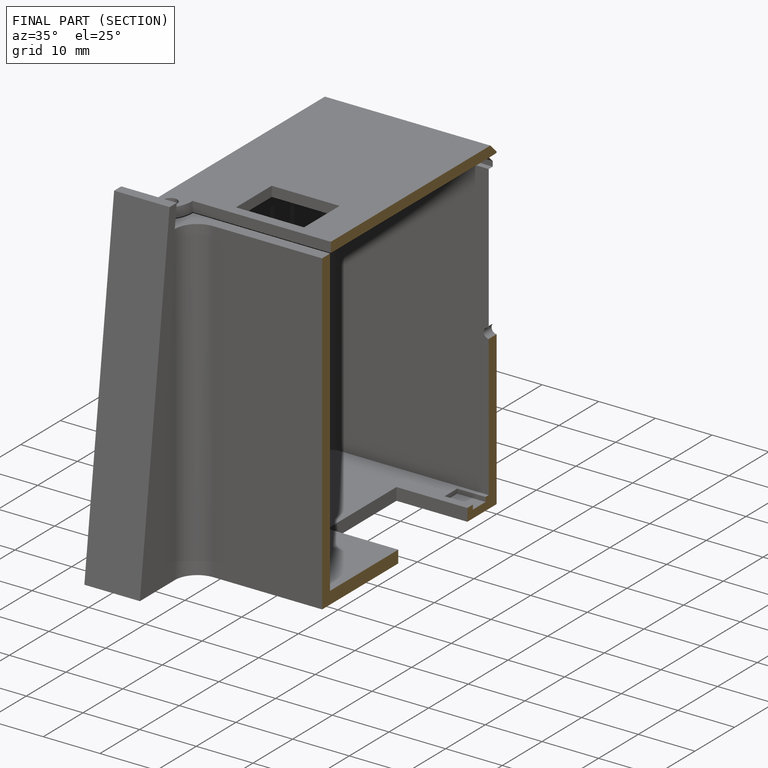
[diagram: finished part — half-section view (interior)]
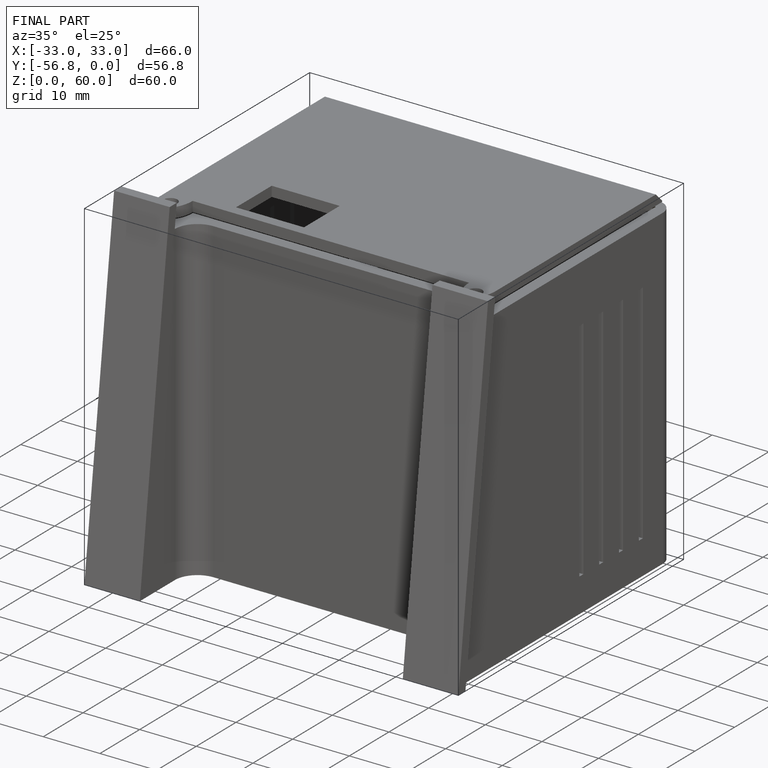
[diagram: finished part — iso view with bounding-box wireframe]
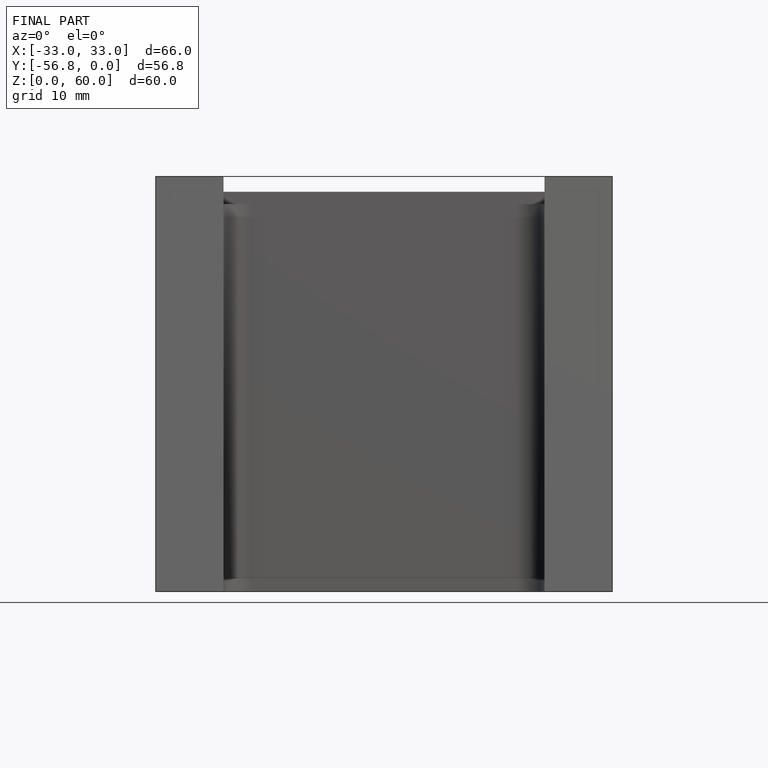
[diagram: finished part — front view with bounding-box wireframe]
